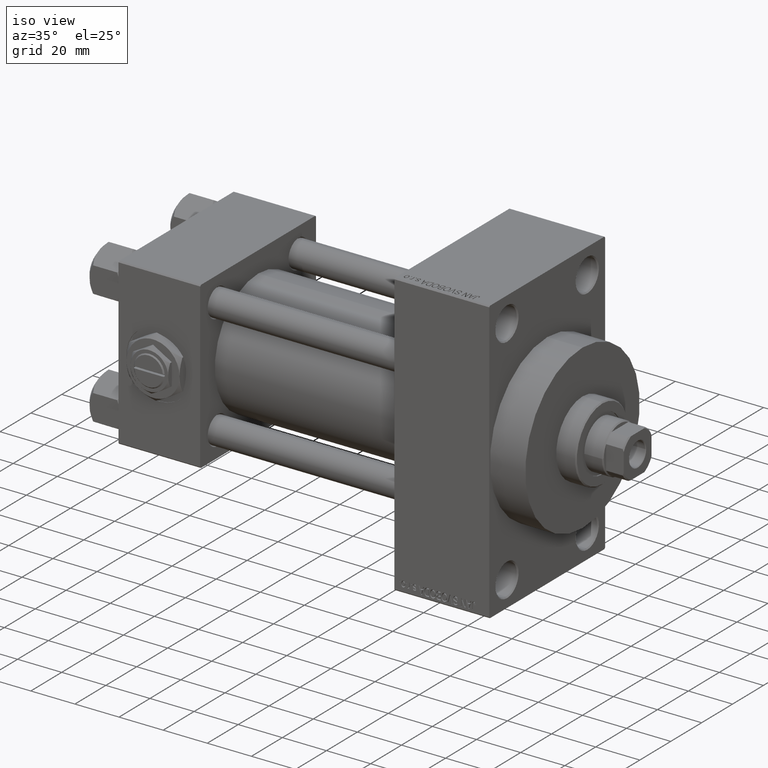
[diagram: clean part render]
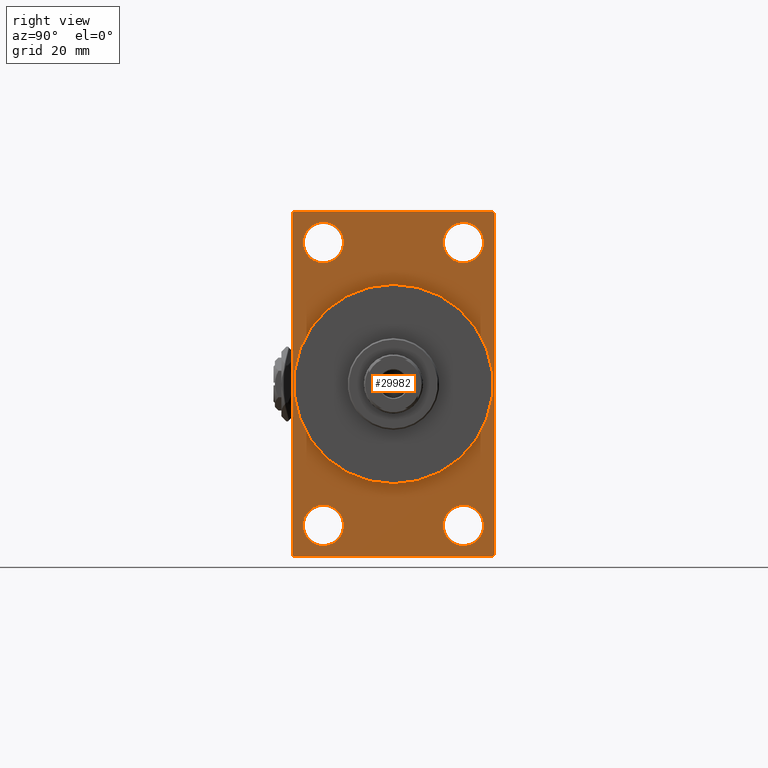
[diagram: tour spotlight — one face highlighted and labeled with its STEP entity id]
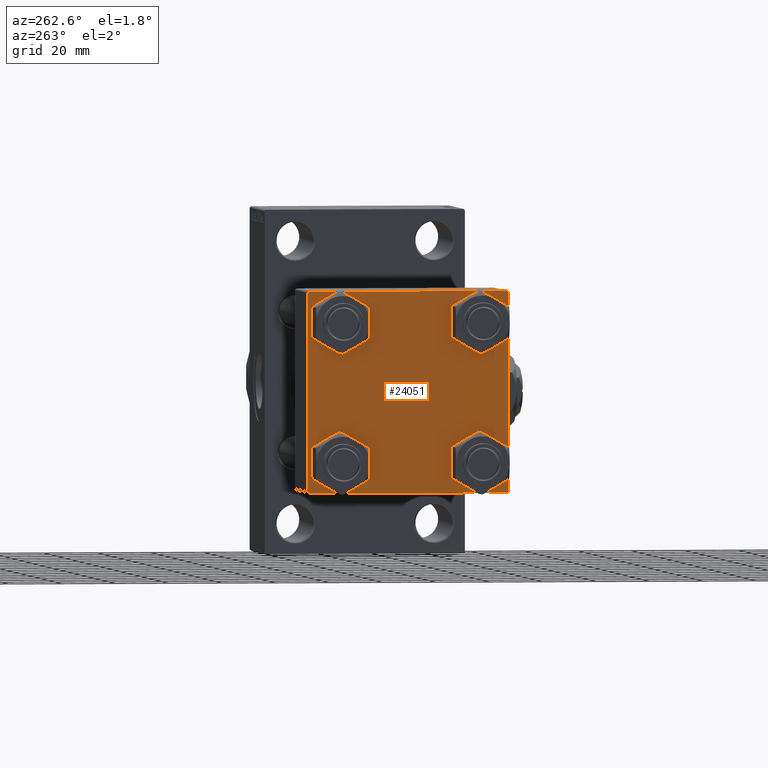
[diagram: tour spotlight — one face highlighted and labeled with its STEP entity id]
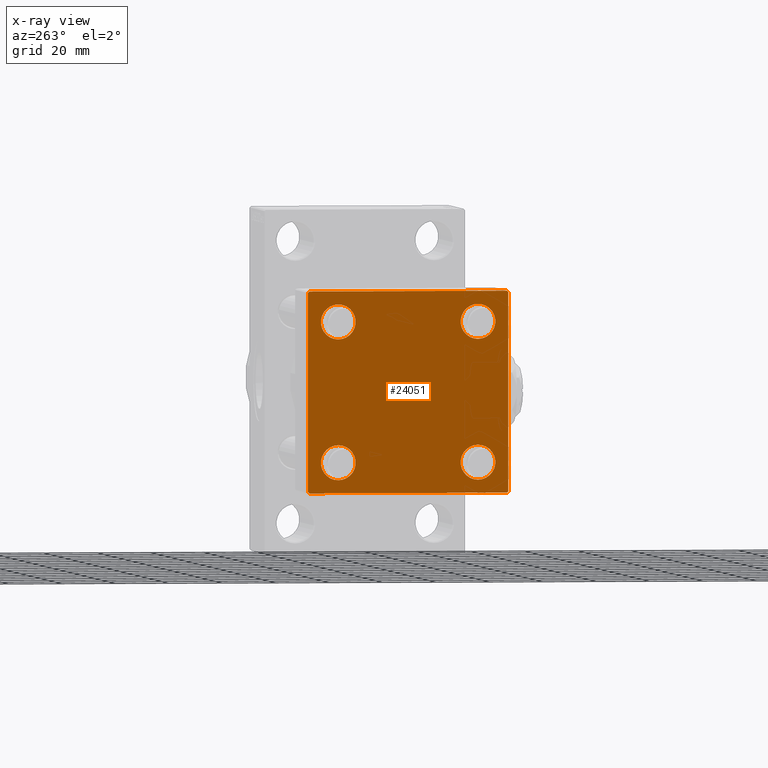
[diagram: x-ray of the same camera — body ghosted, this tour face saturated]
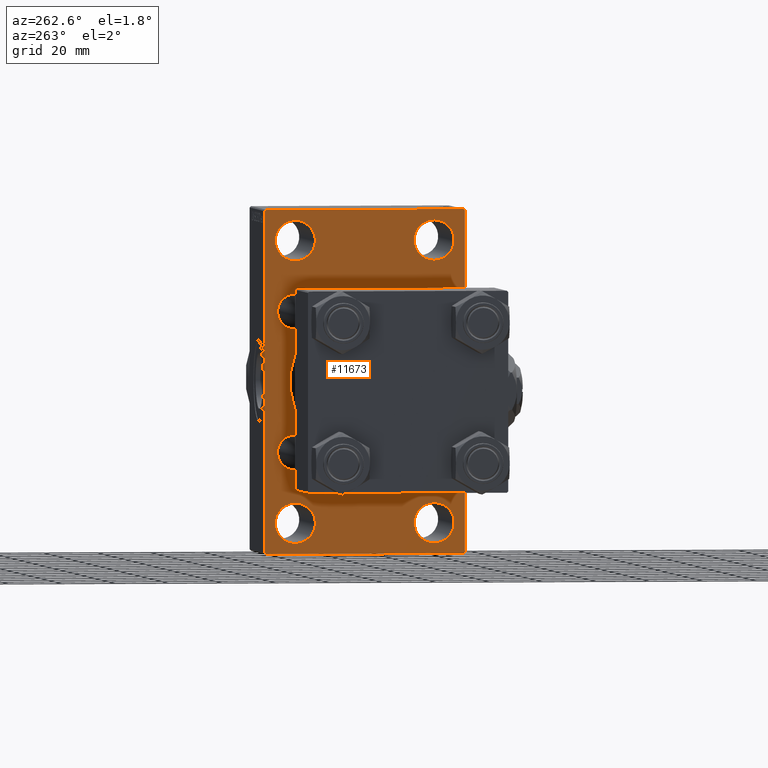
[diagram: tour spotlight — one face highlighted and labeled with its STEP entity id]
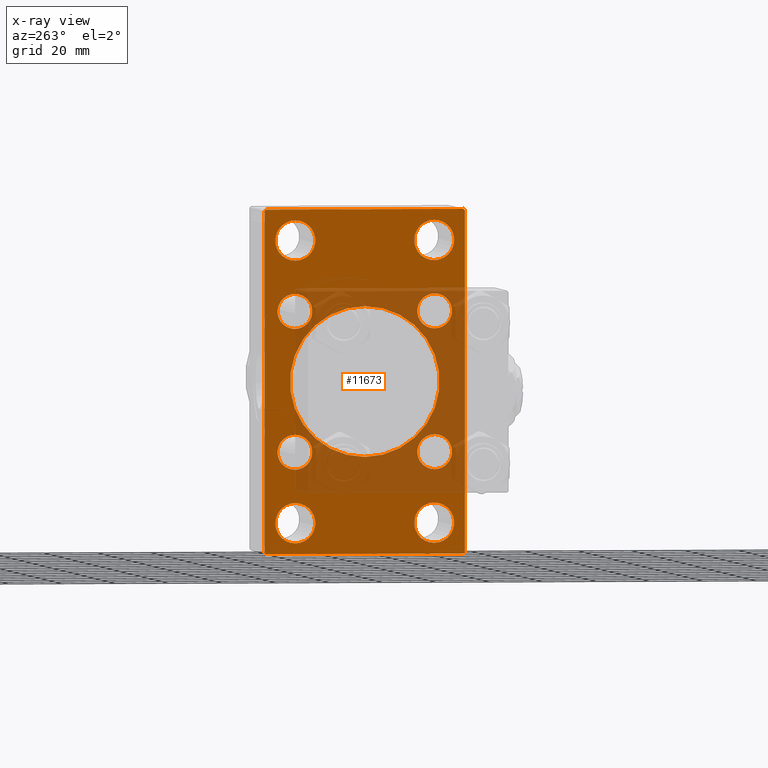
[diagram: x-ray of the same camera — body ghosted, this tour face saturated]
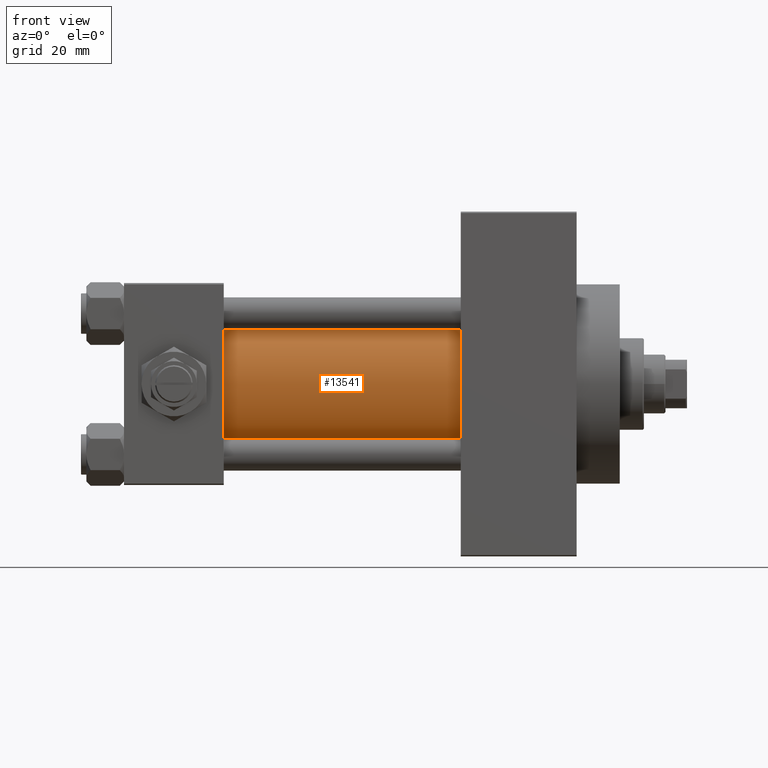
[diagram: tour spotlight — one face highlighted and labeled with its STEP entity id]
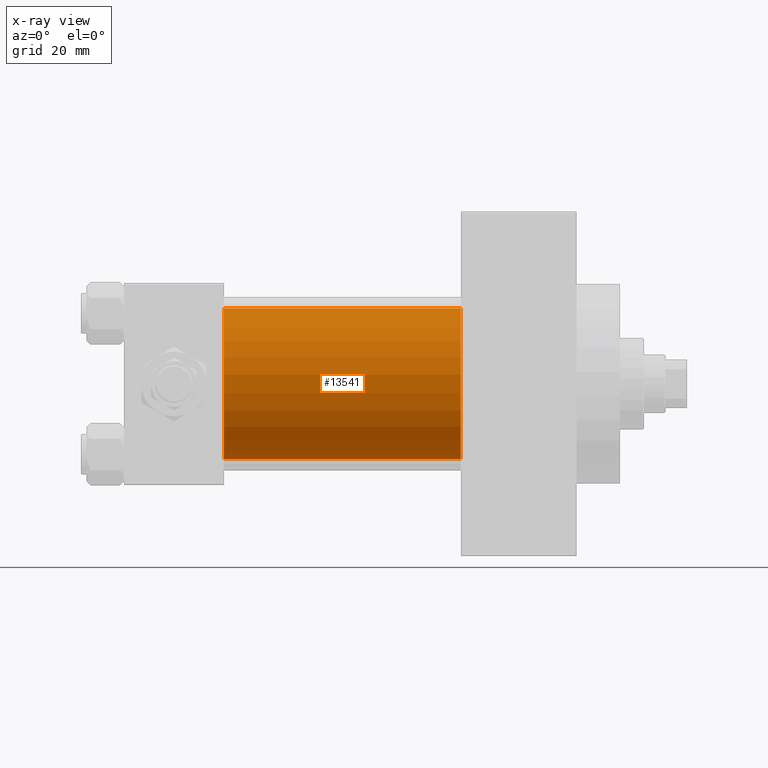
[diagram: x-ray of the same camera — body ghosted, this tour face saturated]
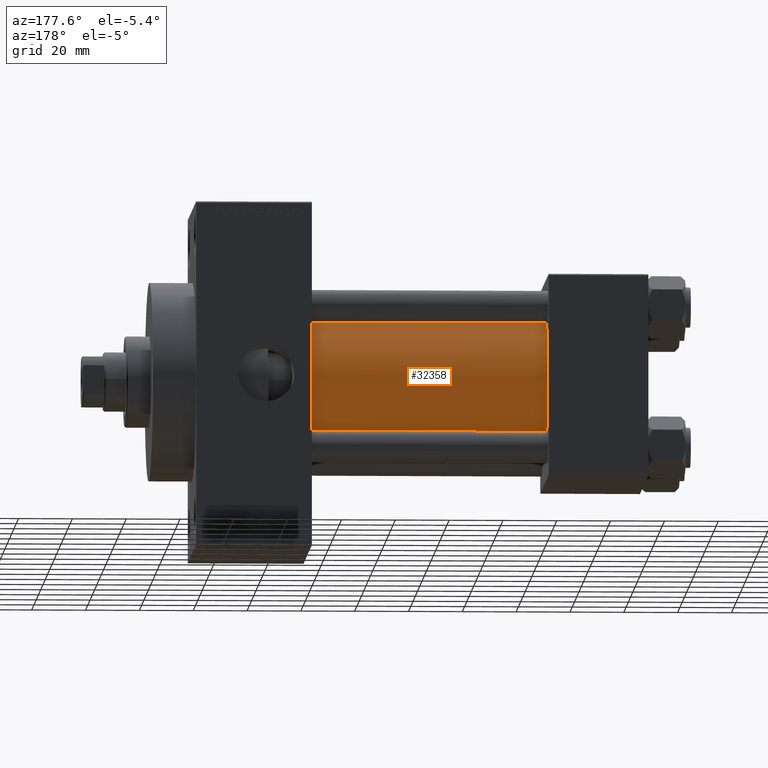
[diagram: tour spotlight — one face highlighted and labeled with its STEP entity id]
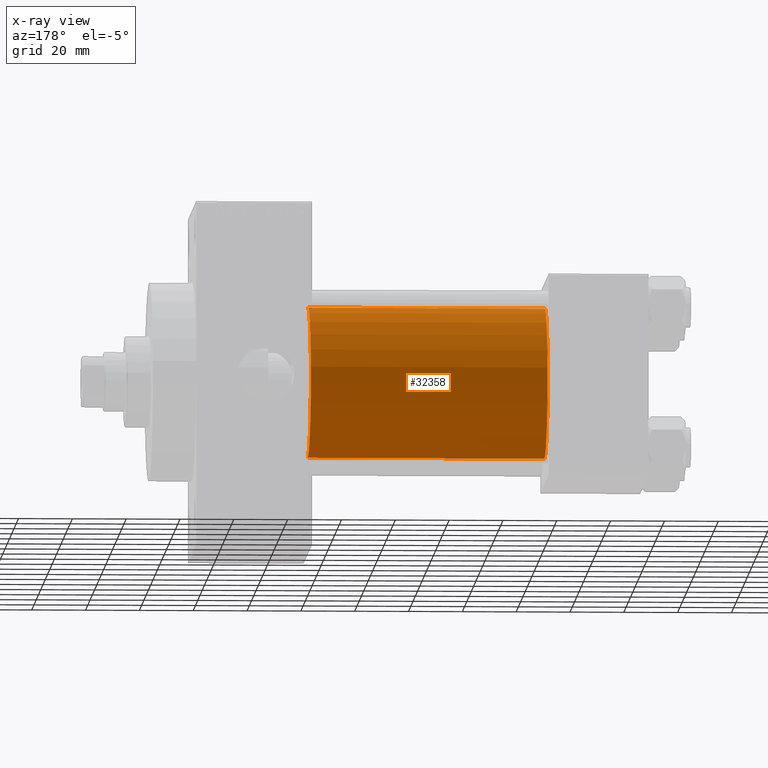
[diagram: x-ray of the same camera — body ghosted, this tour face saturated]
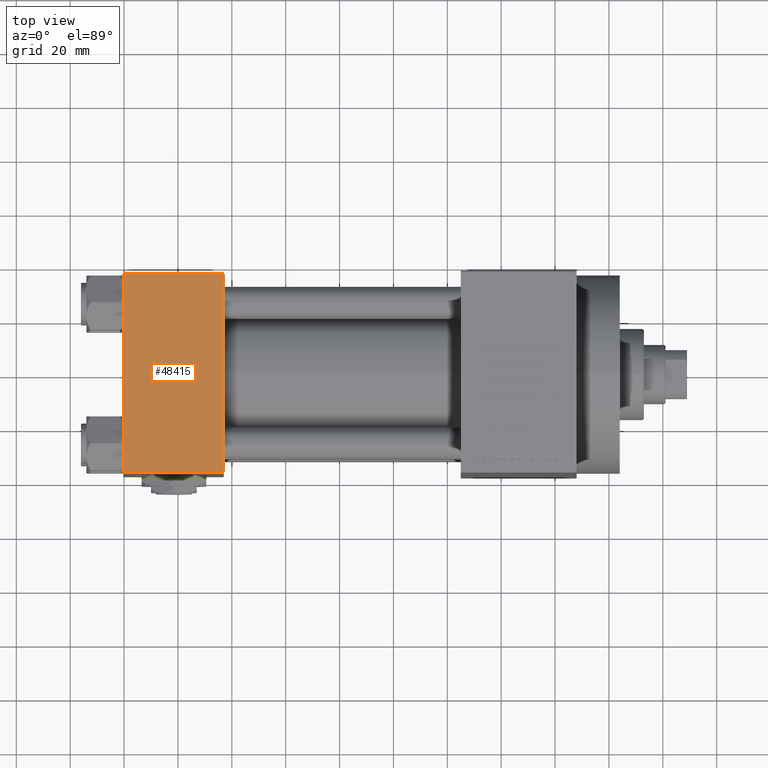
[diagram: tour spotlight — one face highlighted and labeled with its STEP entity id]
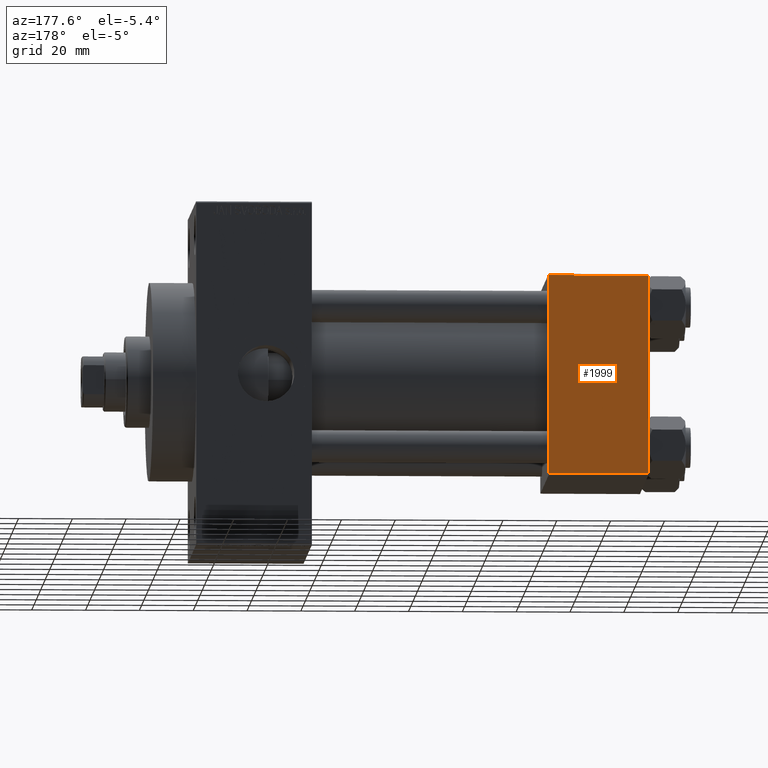
[diagram: tour spotlight — one face highlighted and labeled with its STEP entity id]
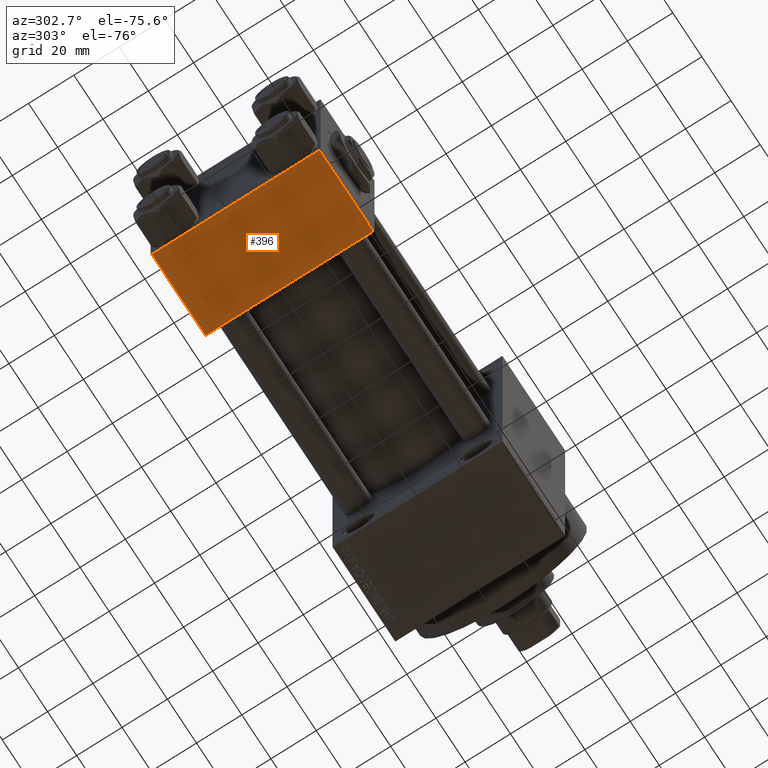
[diagram: tour spotlight — one face highlighted and labeled with its STEP entity id]
A machine part: a face-by-face anatomy tour. The part has 1146 B-rep faces; the first image is the clean iso view, then the 8 largest visible faces are spotlighted one at a time (largest first), each with its STEP entity span.

Face 1 — right view, entity #29982. In plain terms, the highlighted planar face has unit normal (-1, 0, 0).
Definition (entity closure, byte-faithful):
#220 = CARTESIAN_POINT ( 'NONE',  ( 167.9999999999999716, 0.000000000000000000, 0.000000000000000000 ) ) ;
#431 = ORIENTED_EDGE ( 'NONE', *, *, #31808, .T. ) ;
#783 = DIRECTION ( 'NONE',  ( -1.000000000000000000, 0.000000000000000000, -0.000000000000000000 ) ) ;
#1025 = LINE ( 'NONE', #41405, #9571 ) ;
#1063 = CARTESIAN_POINT ( 'NONE',  ( 167.9999999999999716, -25.99999999999999645, -44.99999999999998579 ) ) ;
#1321 = EDGE_CURVE ( 'NONE', #20542, #20929, #12797, .T. ) ;
#1343 = VECTOR ( 'NONE', #5993, 1000.000000000000000 ) ;
#1568 = VECTOR ( 'NONE', #6462, 1000.000000000000000 ) ;
#1702 = VERTEX_POINT ( 'NONE', #12186 ) ;
#1855 = CARTESIAN_POINT ( 'NONE',  ( 167.9999999999999716, 37.49999999999999289, -63.50000000000001421 ) ) ;
#2175 = ORIENTED_EDGE ( 'NONE', *, *, #41721, .T. ) ;
#2349 = EDGE_LOOP ( 'NONE', ( #41329, #25051 ) ) ;
#2408 = CIRCLE ( 'NONE', #29924, 7.500000000000007105 ) ;
#2451 = FACE_BOUND ( 'NONE', #19606, .T. ) ;
#2512 = CARTESIAN_POINT ( 'NONE',  ( 167.9999999999999716, -37.00000000000001421, 63.99999999999997158 ) ) ;
#2533 = DIRECTION ( 'NONE',  ( -1.000000000000000000, 0.000000000000000000, -0.000000000000000000 ) ) ;
#2946 = DIRECTION ( 'NONE',  ( -0.000000000000000000, 0.000000000000000000, 1.000000000000000000 ) ) ;
#3062 = VERTEX_POINT ( 'NONE', #35506 ) ;
#3942 = AXIS2_PLACEMENT_3D ( 'NONE', #8544, #27481, #38081 ) ;
#5035 = ORIENTED_EDGE ( 'NONE', *, *, #17898, .T. ) ;
#5185 = CARTESIAN_POINT ( 'NONE',  ( 167.9999999999999716, 26.00000000000000000, -44.99999999999998579 ) ) ;
#5207 = CARTESIAN_POINT ( 'NONE',  ( 167.9999999999999716, 26.00000000000000000, -52.49999999999999289 ) ) ;
#5491 = VERTEX_POINT ( 'NONE', #42518 ) ;
#5993 = DIRECTION ( 'NONE',  ( 0.000000000000000000, 0.7071067811865573427, -0.7071067811865378028 ) ) ;
#6151 = FACE_OUTER_BOUND ( 'NONE', #31611, .T. ) ;
#6462 = DIRECTION ( 'NONE',  ( 0.000000000000000000, -1.000000000000000000, -1.850371707708594563E-16 ) ) ;
#7416 = EDGE_LOOP ( 'NONE', ( #48676, #45325 ) ) ;
#7845 = AXIS2_PLACEMENT_3D ( 'NONE', #26659, #24173, #12358 ) ;
#8331 = ORIENTED_EDGE ( 'NONE', *, *, #11078, .T. ) ;
#8544 = CARTESIAN_POINT ( 'NONE',  ( 167.9999999999999716, -25.99999999999999645, 52.50000000000000000 ) ) ;
#8913 = CARTESIAN_POINT ( 'NONE',  ( 167.9999999999999716, 37.49999999999999289, -63.50000000000001421 ) ) ;
#9459 = DIRECTION ( 'NONE',  ( -1.000000000000000000, 0.000000000000000000, -0.000000000000000000 ) ) ;
#9571 = VECTOR ( 'NONE', #11632, 1000.000000000000000 ) ;
#9765 = DIRECTION ( 'NONE',  ( 0.000000000000000000, -1.000000000000000000, -1.850371707708594563E-16 ) ) ;
#9881 = CIRCLE ( 'NONE', #40518, 7.500000000000007105 ) ;
#10399 = DIRECTION ( 'NONE',  ( -1.000000000000000000, 0.000000000000000000, -0.000000000000000000 ) ) ;
#10661 = CIRCLE ( 'NONE', #38160, 7.500000000000007105 ) ;
#11078 = EDGE_CURVE ( 'NONE', #31940, #27429, #9881, .T. ) ;
#11632 = DIRECTION ( 'NONE',  ( 0.000000000000000000, -5.421010862427522170E-17, -1.000000000000000000 ) ) ;
#11777 = CIRCLE ( 'NONE', #3942, 7.500000000000007105 ) ;
#12007 = DIRECTION ( 'NONE',  ( 0.000000000000000000, -0.7071067811865474617, 0.7071067811865474617 ) ) ;
#12186 = CARTESIAN_POINT ( 'NONE',  ( 167.9999999999999716, -25.99999999999999645, 60.00000000000000711 ) ) ;
#12358 = DIRECTION ( 'NONE',  ( 0.000000000000000000, 0.000000000000000000, -1.000000000000000000 ) ) ;
#12448 = CARTESIAN_POINT ( 'NONE',  ( 167.9999999999999716, -36.99999999999999289, -64.00000000000001421 ) ) ;
#12560 = VERTEX_POINT ( 'NONE', #2512 ) ;
#12797 = CIRCLE ( 'NONE', #40304, 7.500000000000007105 ) ;
#13322 = VERTEX_POINT ( 'NONE', #1063 ) ;
#13371 = DIRECTION ( 'NONE',  ( 0.000000000000000000, 0.000000000000000000, 1.000000000000000000 ) ) ;
#13457 = ORIENTED_EDGE ( 'NONE', *, *, #1321, .T. ) ;
#13526 = FACE_BOUND ( 'NONE', #7416, .T. ) ;
#13710 = LINE ( 'NONE', #23811, #14320 ) ;
#13742 = CARTESIAN_POINT ( 'NONE',  ( 167.9999999999999716, 0.000000000000000000, 37.00000000000000000 ) ) ;
#14193 = VERTEX_POINT ( 'NONE', #42115 ) ;
#14216 = EDGE_CURVE ( 'NONE', #27429, #31940, #41390, .T. ) ;
#14320 = VECTOR ( 'NONE', #9765, 1000.000000000000000 ) ;
#14498 = VECTOR ( 'NONE', #12007, 1000.000000000000114 ) ;
#15526 = CARTESIAN_POINT ( 'NONE',  ( 167.9999999999999716, 26.00000000000000000, 52.49999999999999289 ) ) ;
#15667 = CARTESIAN_POINT ( 'NONE',  ( 167.9999999999999716, 26.00000000000000000, 60.00000000000000000 ) ) ;
#15988 = EDGE_LOOP ( 'NONE', ( #8331, #27118 ) ) ;
#17133 = VERTEX_POINT ( 'NONE', #17661 ) ;
#17375 = ORIENTED_EDGE ( 'NONE', *, *, #47496, .T. ) ;
#17661 = CARTESIAN_POINT ( 'NONE',  ( 167.9999999999999716, 37.00000000000000000, 63.99999999999998579 ) ) ;
#17780 = CARTESIAN_POINT ( 'NONE',  ( 167.9999999999999716, 37.50000000000000000, 63.99999999999998579 ) ) ;
#17898 = EDGE_CURVE ( 'NONE', #12560, #14193, #48545, .T. ) ;
#18272 = CARTESIAN_POINT ( 'NONE',  ( 167.9999999999999716, -25.99999999999999645, 52.50000000000000000 ) ) ;
#18621 = DIRECTION ( 'NONE',  ( 0.000000000000000000, 0.000000000000000000, -1.000000000000000000 ) ) ;
#18681 = DIRECTION ( 'NONE',  ( 0.000000000000000000, 0.000000000000000000, -1.000000000000000000 ) ) ;
#18750 = EDGE_CURVE ( 'NONE', #38846, #39483, #32803, .T. ) ;
#19606 = EDGE_LOOP ( 'NONE', ( #13457, #17375 ) ) ;
#19690 = ORIENTED_EDGE ( 'NONE', *, *, #36213, .F. ) ;
#20356 = VERTEX_POINT ( 'NONE', #41679 ) ;
#20542 = VERTEX_POINT ( 'NONE', #41320 ) ;
#20836 = CARTESIAN_POINT ( 'NONE',  ( 167.9999999999999716, -25.99999999999999645, 44.99999999999999289 ) ) ;
#20929 = VERTEX_POINT ( 'NONE', #15667 ) ;
#21382 = FACE_BOUND ( 'NONE', #2349, .T. ) ;
#21636 = FACE_BOUND ( 'NONE', #40950, .T. ) ;
#22392 = VECTOR ( 'NONE', #47615, 1000.000000000000114 ) ;
#22829 = EDGE_CURVE ( 'NONE', #13322, #20356, #46292, .T. ) ;
#22899 = DIRECTION ( 'NONE',  ( -1.000000000000000000, 0.000000000000000000, -0.000000000000000000 ) ) ;
#23584 = VERTEX_POINT ( 'NONE', #13742 ) ;
#23811 = CARTESIAN_POINT ( 'NONE',  ( 167.9999999999999716, 37.49999999999999289, -64.00000000000000000 ) ) ;
#24062 = LINE ( 'NONE', #30704, #14498 ) ;
#24173 = DIRECTION ( 'NONE',  ( 1.000000000000000000, 0.000000000000000000, 0.000000000000000000 ) ) ;
#24208 = DIRECTION ( 'NONE',  ( -1.000000000000000000, 0.000000000000000000, -0.000000000000000000 ) ) ;
#24581 = DIRECTION ( 'NONE',  ( -1.000000000000000000, 0.000000000000000000, -0.000000000000000000 ) ) ;
#24702 = EDGE_CURVE ( 'NONE', #36210, #1702, #11777, .T. ) ;
#25051 = ORIENTED_EDGE ( 'NONE', *, *, #30055, .F. ) ;
#25276 = EDGE_CURVE ( 'NONE', #23584, #5491, #29047, .T. ) ;
#25903 = CARTESIAN_POINT ( 'NONE',  ( 167.9999999999999716, -37.49999999999999289, 63.50000000000000000 ) ) ;
#26659 = CARTESIAN_POINT ( 'NONE',  ( 167.9999999999999716, 0.000000000000000000, 0.000000000000000000 ) ) ;
#26933 = DIRECTION ( 'NONE',  ( 0.000000000000000000, 0.000000000000000000, 1.000000000000000000 ) ) ;
#27118 = ORIENTED_EDGE ( 'NONE', *, *, #14216, .T. ) ;
#27429 = VERTEX_POINT ( 'NONE', #5185 ) ;
#27481 = DIRECTION ( 'NONE',  ( -1.000000000000000000, 0.000000000000000000, -0.000000000000000000 ) ) ;
#28359 = LINE ( 'NONE', #17780, #1568 ) ;
#28367 = AXIS2_PLACEMENT_3D ( 'NONE', #220, #44757, #18681 ) ;
#29047 = CIRCLE ( 'NONE', #7845, 37.00000000000000000 ) ;
#29085 = CARTESIAN_POINT ( 'NONE',  ( 167.9999999999999716, -37.49999999999999289, -63.50000000000002842 ) ) ;
#29924 = AXIS2_PLACEMENT_3D ( 'NONE', #18272, #2533, #48056 ) ;
#29982 = ADVANCED_FACE ( 'NONE', ( #13526, #21636, #47229, #2451, #21382, #6151 ), #36397, .F. ) ;
#30055 = EDGE_CURVE ( 'NONE', #5491, #23584, #44887, .T. ) ;
#30228 = CIRCLE ( 'NONE', #47509, 7.500000000000007105 ) ;
#30699 = ORIENTED_EDGE ( 'NONE', *, *, #41869, .T. ) ;
#30704 = CARTESIAN_POINT ( 'NONE',  ( 167.9999999999999716, 37.00000000000000000, 63.99999999999998579 ) ) ;
#30796 = DIRECTION ( 'NONE',  ( 0.000000000000000000, 0.000000000000000000, 1.000000000000000000 ) ) ;
#31173 = ORIENTED_EDGE ( 'NONE', *, *, #34575, .F. ) ;
#31611 = EDGE_LOOP ( 'NONE', ( #30699, #45805, #19690, #43670, #31173, #2175, #431, #5035 ) ) ;
#31808 = EDGE_CURVE ( 'NONE', #17133, #12560, #28359, .T. ) ;
#31940 = VERTEX_POINT ( 'NONE', #48536 ) ;
#32803 = LINE ( 'NONE', #46839, #1343 ) ;
#33489 = DIRECTION ( 'NONE',  ( 0.000000000000000000, 0.000000000000000000, 1.000000000000000000 ) ) ;
#33650 = EDGE_CURVE ( 'NONE', #1702, #36210, #2408, .T. ) ;
#34575 = EDGE_CURVE ( 'NONE', #3062, #47833, #1025, .T. ) ;
#35506 = CARTESIAN_POINT ( 'NONE',  ( 167.9999999999999716, 37.50000000000000000, 63.49999999999998579 ) ) ;
#35554 = LINE ( 'NONE', #1855, #22392 ) ;
#35758 = CARTESIAN_POINT ( 'NONE',  ( 167.9999999999999716, -25.99999999999999645, -52.49999999999999289 ) ) ;
#35897 = VECTOR ( 'NONE', #40413, 1000.000000000000000 ) ;
#36210 = VERTEX_POINT ( 'NONE', #20836 ) ;
#36213 = EDGE_CURVE ( 'NONE', #47440, #39483, #13710, .T. ) ;
#36397 = PLANE ( 'NONE',  #39360 ) ;
#37066 = LINE ( 'NONE', #37308, #41986 ) ;
#37308 = CARTESIAN_POINT ( 'NONE',  ( 167.9999999999999716, -37.49999999999999289, 63.99999999999997158 ) ) ;
#37866 = ORIENTED_EDGE ( 'NONE', *, *, #22829, .T. ) ;
#38081 = DIRECTION ( 'NONE',  ( 0.000000000000000000, 0.000000000000000000, 1.000000000000000000 ) ) ;
#38160 = AXIS2_PLACEMENT_3D ( 'NONE', #46861, #9459, #43894 ) ;
#38846 = VERTEX_POINT ( 'NONE', #29085 ) ;
#39360 = AXIS2_PLACEMENT_3D ( 'NONE', #40578, #39848, #2946 ) ;
#39483 = VERTEX_POINT ( 'NONE', #12448 ) ;
#39841 = AXIS2_PLACEMENT_3D ( 'NONE', #5207, #783, #30796 ) ;
#39848 = DIRECTION ( 'NONE',  ( -1.000000000000000000, 0.000000000000000000, -0.000000000000000000 ) ) ;
#40304 = AXIS2_PLACEMENT_3D ( 'NONE', #15526, #22899, #33489 ) ;
#40413 = DIRECTION ( 'NONE',  ( -0.000000000000000000, -0.7071067811865524577, -0.7071067811865426878 ) ) ;
#40518 = AXIS2_PLACEMENT_3D ( 'NONE', #43272, #24581, #47957 ) ;
#40578 = CARTESIAN_POINT ( 'NONE',  ( 167.9999999999999716, 0.000000000000000000, 0.000000000000000000 ) ) ;
#40929 = EDGE_CURVE ( 'NONE', #20356, #13322, #30228, .T. ) ;
#40950 = EDGE_LOOP ( 'NONE', ( #44557, #37866 ) ) ;
#41320 = CARTESIAN_POINT ( 'NONE',  ( 167.9999999999999716, 26.00000000000000000, 44.99999999999998579 ) ) ;
#41329 = ORIENTED_EDGE ( 'NONE', *, *, #25276, .F. ) ;
#41390 = CIRCLE ( 'NONE', #39841, 7.500000000000007105 ) ;
#41405 = CARTESIAN_POINT ( 'NONE',  ( 167.9999999999999716, 37.50000000000000000, 63.99999999999998579 ) ) ;
#41679 = CARTESIAN_POINT ( 'NONE',  ( 167.9999999999999716, -25.99999999999999645, -60.00000000000000000 ) ) ;
#41721 = EDGE_CURVE ( 'NONE', #3062, #17133, #24062, .T. ) ;
#41869 = EDGE_CURVE ( 'NONE', #14193, #38846, #37066, .T. ) ;
#41986 = VECTOR ( 'NONE', #18621, 1000.000000000000000 ) ;
#42115 = CARTESIAN_POINT ( 'NONE',  ( 167.9999999999999716, -37.49999999999999289, 63.50000000000000000 ) ) ;
#42169 = CARTESIAN_POINT ( 'NONE',  ( 167.9999999999999716, -25.99999999999999645, -52.49999999999999289 ) ) ;
#42518 = CARTESIAN_POINT ( 'NONE',  ( 167.9999999999999716, 4.531193156845206793E-15, -37.00000000000000000 ) ) ;
#42812 = EDGE_CURVE ( 'NONE', #47440, #47833, #35554, .T. ) ;
#43272 = CARTESIAN_POINT ( 'NONE',  ( 167.9999999999999716, 26.00000000000000000, -52.49999999999999289 ) ) ;
#43670 = ORIENTED_EDGE ( 'NONE', *, *, #42812, .T. ) ;
#43894 = DIRECTION ( 'NONE',  ( 0.000000000000000000, 0.000000000000000000, 1.000000000000000000 ) ) ;
#44557 = ORIENTED_EDGE ( 'NONE', *, *, #40929, .T. ) ;
#44757 = DIRECTION ( 'NONE',  ( 1.000000000000000000, 0.000000000000000000, 0.000000000000000000 ) ) ;
#44887 = CIRCLE ( 'NONE', #28367, 37.00000000000000000 ) ;
#45325 = ORIENTED_EDGE ( 'NONE', *, *, #33650, .T. ) ;
#45493 = AXIS2_PLACEMENT_3D ( 'NONE', #42169, #24208, #26933 ) ;
#45805 = ORIENTED_EDGE ( 'NONE', *, *, #18750, .T. ) ;
#45885 = CARTESIAN_POINT ( 'NONE',  ( 167.9999999999999716, 37.00000000000002132, -64.00000000000000000 ) ) ;
#46292 = CIRCLE ( 'NONE', #45493, 7.500000000000007105 ) ;
#46839 = CARTESIAN_POINT ( 'NONE',  ( 167.9999999999999716, -36.99999999999999289, -64.00000000000001421 ) ) ;
#46861 = CARTESIAN_POINT ( 'NONE',  ( 167.9999999999999716, 26.00000000000000000, 52.49999999999999289 ) ) ;
#47229 = FACE_BOUND ( 'NONE', #15988, .T. ) ;
#47440 = VERTEX_POINT ( 'NONE', #45885 ) ;
#47496 = EDGE_CURVE ( 'NONE', #20929, #20542, #10661, .T. ) ;
#47509 = AXIS2_PLACEMENT_3D ( 'NONE', #35758, #10399, #13371 ) ;
#47615 = DIRECTION ( 'NONE',  ( -0.000000000000000000, 0.7071067811865376918, 0.7071067811865573427 ) ) ;
#47833 = VERTEX_POINT ( 'NONE', #8913 ) ;
#47957 = DIRECTION ( 'NONE',  ( 0.000000000000000000, 0.000000000000000000, 1.000000000000000000 ) ) ;
#48056 = DIRECTION ( 'NONE',  ( 0.000000000000000000, 0.000000000000000000, 1.000000000000000000 ) ) ;
#48536 = CARTESIAN_POINT ( 'NONE',  ( 167.9999999999999716, 26.00000000000000000, -60.00000000000000000 ) ) ;
#48545 = LINE ( 'NONE', #25903, #35897 ) ;
#48676 = ORIENTED_EDGE ( 'NONE', *, *, #24702, .T. ) ;

Face 2 — auxiliary view, entity #24051. An x-ray twin of the same camera follows (body ghosted, this face saturated) — the face is partly hidden behind the body. In plain terms, the highlighted planar face has unit normal (-1, 0, 0).
Definition (entity closure, byte-faithful):
#69 = VECTOR ( 'NONE', #43928, 1000.000000000000114 ) ;
#125 = CIRCLE ( 'NONE', #884, 6.500000000000015987 ) ;
#322 = VERTEX_POINT ( 'NONE', #37348 ) ;
#337 = LINE ( 'NONE', #27142, #22050 ) ;
#884 = AXIS2_PLACEMENT_3D ( 'NONE', #27431, #35781, #42427 ) ;
#1366 = EDGE_LOOP ( 'NONE', ( #46014, #26051 ) ) ;
#1642 = DIRECTION ( 'NONE',  ( 0.000000000000000000, 0.000000000000000000, -1.000000000000000000 ) ) ;
#1674 = AXIS2_PLACEMENT_3D ( 'NONE', #7070, #4346, #18631 ) ;
#1738 = ORIENTED_EDGE ( 'NONE', *, *, #4559, .T. ) ;
#1890 = VERTEX_POINT ( 'NONE', #6758 ) ;
#3706 = ORIENTED_EDGE ( 'NONE', *, *, #31294, .T. ) ;
#3835 = DIRECTION ( 'NONE',  ( -0.000000000000000000, 0.000000000000000000, 1.000000000000000000 ) ) ;
#4071 = DIRECTION ( 'NONE',  ( -1.000000000000000000, 0.000000000000000000, -0.000000000000000000 ) ) ;
#4072 = VECTOR ( 'NONE', #20640, 1000.000000000000000 ) ;
#4346 = DIRECTION ( 'NONE',  ( 1.000000000000000000, -0.000000000000000000, 0.000000000000000000 ) ) ;
#4559 = EDGE_CURVE ( 'NONE', #43957, #26632, #39574, .T. ) ;
#4996 = EDGE_CURVE ( 'NONE', #14298, #322, #25923, .T. ) ;
#5645 = CARTESIAN_POINT ( 'NONE',  ( 0.000000000000000000, 37.49999999999999289, 37.50000000000000000 ) ) ;
#5749 = DIRECTION ( 'NONE',  ( 0.000000000000000000, 9.251858538542971581E-17, -1.000000000000000000 ) ) ;
#6758 = CARTESIAN_POINT ( 'NONE',  ( 0.000000000000000000, 26.14999999999999858, 32.65000000000002700 ) ) ;
#7014 = DIRECTION ( 'NONE',  ( 1.000000000000000000, -0.000000000000000000, 0.000000000000000000 ) ) ;
#7070 = CARTESIAN_POINT ( 'NONE',  ( 0.000000000000000000, -26.14999999999999147, -26.15000000000000924 ) ) ;
#7301 = VECTOR ( 'NONE', #14230, 1000.000000000000000 ) ;
#8633 = DIRECTION ( 'NONE',  ( 1.000000000000000000, -0.000000000000000000, 0.000000000000000000 ) ) ;
#9146 = FACE_BOUND ( 'NONE', #35834, .T. ) ;
#9586 = DIRECTION ( 'NONE',  ( 0.000000000000000000, 0.000000000000000000, 1.000000000000000000 ) ) ;
#9619 = EDGE_LOOP ( 'NONE', ( #10090, #47280, #20517, #1738, #16101, #11154, #20635, #29364 ) ) ;
#10090 = ORIENTED_EDGE ( 'NONE', *, *, #4996, .T. ) ;
#10619 = ORIENTED_EDGE ( 'NONE', *, *, #32117, .T. ) ;
#10629 = VECTOR ( 'NONE', #37935, 1000.000000000000000 ) ;
#11020 = AXIS2_PLACEMENT_3D ( 'NONE', #15300, #8633, #41612 ) ;
#11154 = ORIENTED_EDGE ( 'NONE', *, *, #33353, .T. ) ;
#11863 = CARTESIAN_POINT ( 'NONE',  ( 0.000000000000000000, 37.49999999999999289, 37.00000000000000000 ) ) ;
#12153 = DIRECTION ( 'NONE',  ( 0.000000000000000000, 0.000000000000000000, 1.000000000000000000 ) ) ;
#12217 = CARTESIAN_POINT ( 'NONE',  ( 0.000000000000000000, -26.14999999999999147, 32.65000000000003411 ) ) ;
#12291 = VERTEX_POINT ( 'NONE', #29141 ) ;
#12828 = FACE_BOUND ( 'NONE', #22470, .T. ) ;
#12971 = VERTEX_POINT ( 'NONE', #20183 ) ;
#13023 = LINE ( 'NONE', #5645, #4072 ) ;
#13319 = CARTESIAN_POINT ( 'NONE',  ( 0.000000000000000000, -37.50000000000000711, 36.99999999999999289 ) ) ;
#13834 = EDGE_CURVE ( 'NONE', #1890, #28275, #38998, .T. ) ;
#14038 = EDGE_CURVE ( 'NONE', #28174, #26632, #43372, .T. ) ;
#14230 = DIRECTION ( 'NONE',  ( 0.000000000000000000, -0.7071067811865524577, 0.7071067811865426878 ) ) ;
#14298 = VERTEX_POINT ( 'NONE', #11863 ) ;
#14821 = CARTESIAN_POINT ( 'NONE',  ( 0.000000000000000000, 36.99999999999999289, 37.50000000000000000 ) ) ;
#14904 = CARTESIAN_POINT ( 'NONE',  ( 0.000000000000000000, 26.14999999999999858, 26.15000000000000213 ) ) ;
#15300 = CARTESIAN_POINT ( 'NONE',  ( 0.000000000000000000, -26.14999999999999147, 26.15000000000000924 ) ) ;
#16101 = ORIENTED_EDGE ( 'NONE', *, *, #14038, .F. ) ;
#16828 = CARTESIAN_POINT ( 'NONE',  ( 0.000000000000000000, -37.50000000000000711, 37.49999999999999289 ) ) ;
#16981 = CARTESIAN_POINT ( 'NONE',  ( 0.000000000000000000, 26.14999999999999858, -26.15000000000000213 ) ) ;
#17206 = VERTEX_POINT ( 'NONE', #32416 ) ;
#17790 = AXIS2_PLACEMENT_3D ( 'NONE', #14904, #44912, #29904 ) ;
#18631 = DIRECTION ( 'NONE',  ( 0.000000000000000000, 0.000000000000000000, 1.000000000000000000 ) ) ;
#18836 = CARTESIAN_POINT ( 'NONE',  ( 0.000000000000000000, 0.000000000000000000, 0.000000000000000000 ) ) ;
#19325 = CARTESIAN_POINT ( 'NONE',  ( 0.000000000000000000, -26.14999999999999147, -19.64999999999999503 ) ) ;
#19479 = LINE ( 'NONE', #22931, #10629 ) ;
#20183 = CARTESIAN_POINT ( 'NONE',  ( 0.000000000000000000, -26.14999999999999147, -32.65000000000002700 ) ) ;
#20517 = ORIENTED_EDGE ( 'NONE', *, *, #44018, .T. ) ;
#20635 = ORIENTED_EDGE ( 'NONE', *, *, #35623, .F. ) ;
#20640 = DIRECTION ( 'NONE',  ( 0.000000000000000000, -1.000000000000000000, -9.251858538542971581E-17 ) ) ;
#21270 = CIRCLE ( 'NONE', #46420, 6.500000000000015987 ) ;
#22040 = EDGE_CURVE ( 'NONE', #12971, #45708, #43873, .T. ) ;
#22050 = VECTOR ( 'NONE', #34278, 1000.000000000000114 ) ;
#22470 = EDGE_LOOP ( 'NONE', ( #10619, #40746 ) ) ;
#22931 = CARTESIAN_POINT ( 'NONE',  ( 0.000000000000000000, 37.49999999999999289, -37.50000000000000000 ) ) ;
#24051 = ADVANCED_FACE ( 'NONE', ( #12828, #9146, #24159, #28086, #37537 ), #33842, .T. ) ;
#24159 = FACE_BOUND ( 'NONE', #1366, .T. ) ;
#24919 = CARTESIAN_POINT ( 'NONE',  ( 0.000000000000000000, -37.00000000000002132, -37.50000000000000711 ) ) ;
#25194 = CIRCLE ( 'NONE', #30666, 6.500000000000023093 ) ;
#25252 = AXIS2_PLACEMENT_3D ( 'NONE', #40713, #7014, #37019 ) ;
#25318 = ORIENTED_EDGE ( 'NONE', *, *, #22040, .T. ) ;
#25482 = LINE ( 'NONE', #47629, #69 ) ;
#25706 = EDGE_CURVE ( 'NONE', #30113, #40536, #25194, .T. ) ;
#25923 = LINE ( 'NONE', #40921, #37167 ) ;
#26022 = CARTESIAN_POINT ( 'NONE',  ( 0.000000000000000000, 37.24999999999999289, 37.24999999999999289 ) ) ;
#26051 = ORIENTED_EDGE ( 'NONE', *, *, #28511, .T. ) ;
#26607 = AXIS2_PLACEMENT_3D ( 'NONE', #38242, #30611, #12153 ) ;
#26632 = VERTEX_POINT ( 'NONE', #42320 ) ;
#27000 = VECTOR ( 'NONE', #29948, 1000.000000000000114 ) ;
#27142 = CARTESIAN_POINT ( 'NONE',  ( 0.000000000000000000, 37.24999999999998579, -37.24999999999998579 ) ) ;
#27431 = CARTESIAN_POINT ( 'NONE',  ( 0.000000000000000000, 26.14999999999999858, -26.15000000000000213 ) ) ;
#27469 = AXIS2_PLACEMENT_3D ( 'NONE', #18836, #4071, #3835 ) ;
#27796 = CARTESIAN_POINT ( 'NONE',  ( 0.000000000000000000, -26.14999999999999147, 26.15000000000000924 ) ) ;
#27985 = ORIENTED_EDGE ( 'NONE', *, *, #13834, .T. ) ;
#28086 = FACE_BOUND ( 'NONE', #46676, .T. ) ;
#28174 = VERTEX_POINT ( 'NONE', #13319 ) ;
#28275 = VERTEX_POINT ( 'NONE', #46179 ) ;
#28511 = EDGE_CURVE ( 'NONE', #17206, #30517, #125, .T. ) ;
#29141 = CARTESIAN_POINT ( 'NONE',  ( 0.000000000000000000, 36.99999999999997868, -37.50000000000000000 ) ) ;
#29364 = ORIENTED_EDGE ( 'NONE', *, *, #39399, .T. ) ;
#29452 = EDGE_CURVE ( 'NONE', #322, #12291, #337, .T. ) ;
#29904 = DIRECTION ( 'NONE',  ( 0.000000000000000000, 0.000000000000000000, 1.000000000000000000 ) ) ;
#29936 = CARTESIAN_POINT ( 'NONE',  ( 0.000000000000000000, 26.14999999999999858, -19.64999999999998792 ) ) ;
#29948 = DIRECTION ( 'NONE',  ( 0.000000000000000000, 0.7071067811865474617, -0.7071067811865474617 ) ) ;
#30017 = EDGE_CURVE ( 'NONE', #30517, #17206, #21270, .T. ) ;
#30113 = VERTEX_POINT ( 'NONE', #33439 ) ;
#30517 = VERTEX_POINT ( 'NONE', #29936 ) ;
#30611 = DIRECTION ( 'NONE',  ( 1.000000000000000000, -0.000000000000000000, 0.000000000000000000 ) ) ;
#30666 = AXIS2_PLACEMENT_3D ( 'NONE', #27796, #35410, #46009 ) ;
#31294 = EDGE_CURVE ( 'NONE', #45708, #12971, #46454, .T. ) ;
#31630 = EDGE_CURVE ( 'NONE', #28275, #1890, #43992, .T. ) ;
#32117 = EDGE_CURVE ( 'NONE', #40536, #30113, #34590, .T. ) ;
#32416 = CARTESIAN_POINT ( 'NONE',  ( 0.000000000000000000, 26.14999999999999858, -32.65000000000001990 ) ) ;
#33353 = EDGE_CURVE ( 'NONE', #28174, #39670, #25482, .T. ) ;
#33439 = CARTESIAN_POINT ( 'NONE',  ( 0.000000000000000000, -26.14999999999999147, 19.64999999999999147 ) ) ;
#33842 = PLANE ( 'NONE',  #27469 ) ;
#34278 = DIRECTION ( 'NONE',  ( -0.000000000000000000, -0.7071067811865474617, -0.7071067811865474617 ) ) ;
#34590 = CIRCLE ( 'NONE', #11020, 6.500000000000023093 ) ;
#35098 = VECTOR ( 'NONE', #5749, 1000.000000000000000 ) ;
#35410 = DIRECTION ( 'NONE',  ( 1.000000000000000000, -0.000000000000000000, 0.000000000000000000 ) ) ;
#35623 = EDGE_CURVE ( 'NONE', #37727, #39670, #13023, .T. ) ;
#35781 = DIRECTION ( 'NONE',  ( 1.000000000000000000, -0.000000000000000000, 0.000000000000000000 ) ) ;
#35834 = EDGE_LOOP ( 'NONE', ( #3706, #25318 ) ) ;
#36126 = CARTESIAN_POINT ( 'NONE',  ( 0.000000000000000000, -37.24999999999975842, -37.25000000000027001 ) ) ;
#37019 = DIRECTION ( 'NONE',  ( 0.000000000000000000, 0.000000000000000000, 1.000000000000000000 ) ) ;
#37167 = VECTOR ( 'NONE', #1642, 1000.000000000000000 ) ;
#37325 = LINE ( 'NONE', #26022, #27000 ) ;
#37348 = CARTESIAN_POINT ( 'NONE',  ( 0.000000000000000000, 37.49999999999999289, -36.99999999999998579 ) ) ;
#37537 = FACE_OUTER_BOUND ( 'NONE', #9619, .T. ) ;
#37727 = VERTEX_POINT ( 'NONE', #14821 ) ;
#37935 = DIRECTION ( 'NONE',  ( 0.000000000000000000, -1.000000000000000000, -9.251858538542972814E-17 ) ) ;
#37947 = ORIENTED_EDGE ( 'NONE', *, *, #31630, .T. ) ;
#38242 = CARTESIAN_POINT ( 'NONE',  ( 0.000000000000000000, -26.14999999999999147, -26.15000000000000924 ) ) ;
#38998 = CIRCLE ( 'NONE', #17790, 6.500000000000023093 ) ;
#39399 = EDGE_CURVE ( 'NONE', #37727, #14298, #37325, .T. ) ;
#39574 = LINE ( 'NONE', #36126, #7301 ) ;
#39670 = VERTEX_POINT ( 'NONE', #46274 ) ;
#40334 = DIRECTION ( 'NONE',  ( 1.000000000000000000, -0.000000000000000000, 0.000000000000000000 ) ) ;
#40536 = VERTEX_POINT ( 'NONE', #12217 ) ;
#40713 = CARTESIAN_POINT ( 'NONE',  ( 0.000000000000000000, 26.14999999999999858, 26.15000000000000213 ) ) ;
#40746 = ORIENTED_EDGE ( 'NONE', *, *, #25706, .T. ) ;
#40921 = CARTESIAN_POINT ( 'NONE',  ( 0.000000000000000000, 37.49999999999999289, 37.50000000000000000 ) ) ;
#41612 = DIRECTION ( 'NONE',  ( 0.000000000000000000, 0.000000000000000000, 1.000000000000000000 ) ) ;
#42320 = CARTESIAN_POINT ( 'NONE',  ( 0.000000000000000000, -37.50000000000000000, -37.00000000000003553 ) ) ;
#42427 = DIRECTION ( 'NONE',  ( 0.000000000000000000, 0.000000000000000000, 1.000000000000000000 ) ) ;
#43372 = LINE ( 'NONE', #16828, #35098 ) ;
#43873 = CIRCLE ( 'NONE', #26607, 6.500000000000015987 ) ;
#43928 = DIRECTION ( 'NONE',  ( -0.000000000000000000, 0.7071067811865474617, 0.7071067811865474617 ) ) ;
#43957 = VERTEX_POINT ( 'NONE', #24919 ) ;
#43992 = CIRCLE ( 'NONE', #25252, 6.500000000000023093 ) ;
#44018 = EDGE_CURVE ( 'NONE', #12291, #43957, #19479, .T. ) ;
#44912 = DIRECTION ( 'NONE',  ( 1.000000000000000000, -0.000000000000000000, 0.000000000000000000 ) ) ;
#45708 = VERTEX_POINT ( 'NONE', #19325 ) ;
#46009 = DIRECTION ( 'NONE',  ( 0.000000000000000000, 0.000000000000000000, 1.000000000000000000 ) ) ;
#46014 = ORIENTED_EDGE ( 'NONE', *, *, #30017, .T. ) ;
#46179 = CARTESIAN_POINT ( 'NONE',  ( 0.000000000000000000, 26.14999999999999858, 19.64999999999998437 ) ) ;
#46274 = CARTESIAN_POINT ( 'NONE',  ( 0.000000000000000000, -37.00000000000000711, 37.49999999999999289 ) ) ;
#46420 = AXIS2_PLACEMENT_3D ( 'NONE', #16981, #40334, #9586 ) ;
#46454 = CIRCLE ( 'NONE', #1674, 6.500000000000015987 ) ;
#46676 = EDGE_LOOP ( 'NONE', ( #27985, #37947 ) ) ;
#47280 = ORIENTED_EDGE ( 'NONE', *, *, #29452, .T. ) ;
#47629 = CARTESIAN_POINT ( 'NONE',  ( -0.000000000000000000, -37.25000000000000000, 37.25000000000000000 ) ) ;

Face 3 — auxiliary view, entity #11673. An x-ray twin of the same camera follows (body ghosted, this face saturated) — the face is partly hidden behind the body. In plain terms, the highlighted planar face has unit normal (-1, 0, 0).
Definition (entity closure, byte-faithful):
#70 = CARTESIAN_POINT ( 'NONE',  ( 125.0000000000000000, 26.00000000000000000, -52.49999999999999289 ) ) ;
#161 = EDGE_CURVE ( 'NONE', #24292, #46225, #30744, .T. ) ;
#479 = AXIS2_PLACEMENT_3D ( 'NONE', #9460, #47341, #31610 ) ;
#746 = DIRECTION ( 'NONE',  ( 0.000000000000000000, -1.000000000000000000, -1.850371707708594563E-16 ) ) ;
#970 = CARTESIAN_POINT ( 'NONE',  ( 125.0000000000000000, -37.49999999999999289, 63.99999999999997158 ) ) ;
#1177 = CIRCLE ( 'NONE', #28679, 6.500000000000008882 ) ;
#1455 = DIRECTION ( 'NONE',  ( 1.000000000000000000, 0.000000000000000000, 0.000000000000000000 ) ) ;
#1985 = CIRCLE ( 'NONE', #31056, 7.500000000000034639 ) ;
#2288 = DIRECTION ( 'NONE',  ( 0.000000000000000000, 0.000000000000000000, 1.000000000000000000 ) ) ;
#2524 = CARTESIAN_POINT ( 'NONE',  ( 125.0000000000000000, 26.00000000000000000, 60.00000000000002842 ) ) ;
#2693 = EDGE_CURVE ( 'NONE', #44822, #10166, #12832, .T. ) ;
#2900 = DIRECTION ( 'NONE',  ( 1.000000000000000000, -0.000000000000000000, 0.000000000000000000 ) ) ;
#3079 = DIRECTION ( 'NONE',  ( 1.000000000000000000, -0.000000000000000000, 0.000000000000000000 ) ) ;
#3321 = DIRECTION ( 'NONE',  ( 0.000000000000000000, 0.000000000000000000, 1.000000000000000000 ) ) ;
#3417 = ORIENTED_EDGE ( 'NONE', *, *, #26925, .T. ) ;
#3562 = CARTESIAN_POINT ( 'NONE',  ( 125.0000000000000000, 26.14999999999999858, -26.15000000000000213 ) ) ;
#3746 = AXIS2_PLACEMENT_3D ( 'NONE', #25924, #22215, #37473 ) ;
#3761 = DIRECTION ( 'NONE',  ( 0.000000000000000000, 0.000000000000000000, 1.000000000000000000 ) ) ;
#3838 = VERTEX_POINT ( 'NONE', #28930 ) ;
#4101 = CARTESIAN_POINT ( 'NONE',  ( 125.0000000000000000, -2.602085213965210642E-15, 0.000000000000000000 ) ) ;
#4665 = EDGE_CURVE ( 'NONE', #43920, #14223, #43415, .T. ) ;
#4733 = EDGE_LOOP ( 'NONE', ( #7662, #13772 ) ) ;
#4787 = VERTEX_POINT ( 'NONE', #45461 ) ;
#4802 = EDGE_CURVE ( 'NONE', #5241, #38497, #10448, .T. ) ;
#4847 = DIRECTION ( 'NONE',  ( 0.000000000000000000, 0.000000000000000000, 1.000000000000000000 ) ) ;
#4859 = ORIENTED_EDGE ( 'NONE', *, *, #46373, .T. ) ;
#5032 = ORIENTED_EDGE ( 'NONE', *, *, #9802, .F. ) ;
#5241 = VERTEX_POINT ( 'NONE', #40375 ) ;
#5538 = CARTESIAN_POINT ( 'NONE',  ( 125.0000000000000000, -26.14999999999999147, 32.65000000000001990 ) ) ;
#5577 = VECTOR ( 'NONE', #11125, 1000.000000000000000 ) ;
#6018 = FACE_OUTER_BOUND ( 'NONE', #40144, .T. ) ;
#6362 = AXIS2_PLACEMENT_3D ( 'NONE', #4101, #44212, #15182 ) ;
#6593 = CARTESIAN_POINT ( 'NONE',  ( 125.0000000000000000, -25.99999999999999645, -52.49999999999999289 ) ) ;
#7257 = EDGE_CURVE ( 'NONE', #17648, #30697, #7401, .T. ) ;
#7401 = CIRCLE ( 'NONE', #16846, 6.500000000000008882 ) ;
#7435 = VECTOR ( 'NONE', #27182, 1000.000000000000114 ) ;
#7510 = CIRCLE ( 'NONE', #9847, 6.500000000000008882 ) ;
#7662 = ORIENTED_EDGE ( 'NONE', *, *, #45394, .T. ) ;
#7874 = VECTOR ( 'NONE', #746, 1000.000000000000000 ) ;
#8051 = EDGE_LOOP ( 'NONE', ( #10540, #31670 ) ) ;
#8574 = ORIENTED_EDGE ( 'NONE', *, *, #47173, .T. ) ;
#8892 = CARTESIAN_POINT ( 'NONE',  ( 125.0000000000000000, 26.00000000000000000, 44.99999999999995737 ) ) ;
#9286 = CIRCLE ( 'NONE', #24111, 7.500000000000034639 ) ;
#9298 = LINE ( 'NONE', #30714, #27334 ) ;
#9359 = CARTESIAN_POINT ( 'NONE',  ( 125.0000000000000000, 50.50000000000053291, -50.49999999999912603 ) ) ;
#9447 = DIRECTION ( 'NONE',  ( 0.000000000000000000, -0.7071067811865573427, 0.7071067811865378028 ) ) ;
#9460 = CARTESIAN_POINT ( 'NONE',  ( 125.0000000000000000, 0.000000000000000000, 0.000000000000000000 ) ) ;
#9802 = EDGE_CURVE ( 'NONE', #24970, #42160, #11780, .T. ) ;
#9847 = AXIS2_PLACEMENT_3D ( 'NONE', #14588, #25414, #2288 ) ;
#9989 = EDGE_CURVE ( 'NONE', #14223, #43920, #1985, .T. ) ;
#10166 = VERTEX_POINT ( 'NONE', #14697 ) ;
#10343 = AXIS2_PLACEMENT_3D ( 'NONE', #41419, #33550, #30342 ) ;
#10448 = CIRCLE ( 'NONE', #14391, 6.500000000000008882 ) ;
#10515 = DIRECTION ( 'NONE',  ( 0.000000000000000000, 0.000000000000000000, 1.000000000000000000 ) ) ;
#10540 = ORIENTED_EDGE ( 'NONE', *, *, #4665, .T. ) ;
#10610 = EDGE_LOOP ( 'NONE', ( #28978, #3417 ) ) ;
#11125 = DIRECTION ( 'NONE',  ( 0.000000000000000000, -5.421010862427522170E-17, -1.000000000000000000 ) ) ;
#11232 = AXIS2_PLACEMENT_3D ( 'NONE', #18407, #25796, #18656 ) ;
#11475 = ORIENTED_EDGE ( 'NONE', *, *, #35727, .T. ) ;
#11517 = VERTEX_POINT ( 'NONE', #27201 ) ;
#11673 = ADVANCED_FACE ( 'NONE', ( #17092, #43395, #20530, #21256, #16608, #16853, #32092, #13642, #47098, #6018 ), #21015, .T. ) ;
#11762 = VERTEX_POINT ( 'NONE', #16058 ) ;
#11780 = LINE ( 'NONE', #22853, #23195 ) ;
#11937 = EDGE_LOOP ( 'NONE', ( #41969, #36628 ) ) ;
#12043 = DIRECTION ( 'NONE',  ( 0.000000000000000000, 0.000000000000000000, 1.000000000000000000 ) ) ;
#12523 = CARTESIAN_POINT ( 'NONE',  ( 125.0000000000000000, 26.14999999999999858, -32.65000000000001279 ) ) ;
#12832 = CIRCLE ( 'NONE', #27767, 6.500000000000008882 ) ;
#12881 = CARTESIAN_POINT ( 'NONE',  ( 125.0000000000000000, 37.00000000000002132, -64.00000000000000000 ) ) ;
#13642 = FACE_BOUND ( 'NONE', #20880, .T. ) ;
#13772 = ORIENTED_EDGE ( 'NONE', *, *, #41170, .T. ) ;
#13968 = CARTESIAN_POINT ( 'NONE',  ( 125.0000000000000000, -25.99999999999999645, 44.99999999999996447 ) ) ;
#14223 = VERTEX_POINT ( 'NONE', #8892 ) ;
#14346 = CARTESIAN_POINT ( 'NONE',  ( 125.0000000000000000, -26.14999999999999147, 26.15000000000000924 ) ) ;
#14391 = AXIS2_PLACEMENT_3D ( 'NONE', #27244, #20334, #4847 ) ;
#14436 = VERTEX_POINT ( 'NONE', #26345 ) ;
#14588 = CARTESIAN_POINT ( 'NONE',  ( 125.0000000000000000, -26.14999999999999147, -26.15000000000000924 ) ) ;
#14697 = CARTESIAN_POINT ( 'NONE',  ( 125.0000000000000000, -26.14999999999999147, -32.65000000000001990 ) ) ;
#15035 = CARTESIAN_POINT ( 'NONE',  ( 125.0000000000000000, -25.99999999999999645, -52.49999999999999289 ) ) ;
#15053 = EDGE_CURVE ( 'NONE', #36823, #46225, #43633, .T. ) ;
#15149 = EDGE_CURVE ( 'NONE', #38497, #5241, #25744, .T. ) ;
#15153 = ORIENTED_EDGE ( 'NONE', *, *, #38322, .T. ) ;
#15182 = DIRECTION ( 'NONE',  ( 0.000000000000000000, 0.000000000000000000, -1.000000000000000000 ) ) ;
#15680 = VERTEX_POINT ( 'NONE', #23320 ) ;
#16058 = CARTESIAN_POINT ( 'NONE',  ( 125.0000000000000000, -25.99999999999999645, -44.99999999999995737 ) ) ;
#16608 = FACE_BOUND ( 'NONE', #26941, .T. ) ;
#16631 = VECTOR ( 'NONE', #23375, 1000.000000000000000 ) ;
#16680 = DIRECTION ( 'NONE',  ( 1.000000000000000000, -0.000000000000000000, 0.000000000000000000 ) ) ;
#16846 = AXIS2_PLACEMENT_3D ( 'NONE', #14346, #44850, #44361 ) ;
#16853 = FACE_BOUND ( 'NONE', #11937, .T. ) ;
#17092 = FACE_BOUND ( 'NONE', #20642, .T. ) ;
#17114 = EDGE_CURVE ( 'NONE', #14436, #11762, #9286, .T. ) ;
#17416 = DIRECTION ( 'NONE',  ( 1.000000000000000000, -0.000000000000000000, 0.000000000000000000 ) ) ;
#17648 = VERTEX_POINT ( 'NONE', #25479 ) ;
#17654 = AXIS2_PLACEMENT_3D ( 'NONE', #35162, #1455, #35642 ) ;
#18328 = AXIS2_PLACEMENT_3D ( 'NONE', #22811, #29950, #18638 ) ;
#18407 = CARTESIAN_POINT ( 'NONE',  ( 125.0000000000000000, 26.00000000000000000, 52.49999999999999289 ) ) ;
#18638 = DIRECTION ( 'NONE',  ( 0.000000000000000000, 0.000000000000000000, 1.000000000000000000 ) ) ;
#18656 = DIRECTION ( 'NONE',  ( 0.000000000000000000, 0.000000000000000000, 1.000000000000000000 ) ) ;
#18666 = ORIENTED_EDGE ( 'NONE', *, *, #25672, .T. ) ;
#18940 = CIRCLE ( 'NONE', #6362, 28.00000000000000000 ) ;
#18992 = CIRCLE ( 'NONE', #10343, 7.500000000000034639 ) ;
#19435 = VECTOR ( 'NONE', #9447, 1000.000000000000000 ) ;
#19496 = VERTEX_POINT ( 'NONE', #34619 ) ;
#19689 = EDGE_CURVE ( 'NONE', #24292, #42160, #9298, .T. ) ;
#19877 = DIRECTION ( 'NONE',  ( 0.000000000000000000, -1.000000000000000000, -1.850371707708594563E-16 ) ) ;
#19997 = AXIS2_PLACEMENT_3D ( 'NONE', #41580, #30265, #12043 ) ;
#20334 = DIRECTION ( 'NONE',  ( 1.000000000000000000, -0.000000000000000000, 0.000000000000000000 ) ) ;
#20372 = ORIENTED_EDGE ( 'NONE', *, *, #44739, .T. ) ;
#20530 = FACE_BOUND ( 'NONE', #4733, .T. ) ;
#20642 = EDGE_LOOP ( 'NONE', ( #11475, #15153 ) ) ;
#20880 = EDGE_LOOP ( 'NONE', ( #46174, #8574 ) ) ;
#21015 = PLANE ( 'NONE',  #479 ) ;
#21256 = FACE_BOUND ( 'NONE', #8051, .T. ) ;
#21470 = VECTOR ( 'NONE', #28060, 1000.000000000000114 ) ;
#21612 = CIRCLE ( 'NONE', #34189, 7.500000000000034639 ) ;
#21732 = CARTESIAN_POINT ( 'NONE',  ( 125.0000000000000000, -50.49999999999949551, -50.50000000000089528 ) ) ;
#22215 = DIRECTION ( 'NONE',  ( 1.000000000000000000, -0.000000000000000000, 0.000000000000000000 ) ) ;
#22333 = VERTEX_POINT ( 'NONE', #34717 ) ;
#22451 = DIRECTION ( 'NONE',  ( 1.000000000000000000, -0.000000000000000000, 0.000000000000000000 ) ) ;
#22811 = CARTESIAN_POINT ( 'NONE',  ( 125.0000000000000000, -25.99999999999999645, 52.50000000000000000 ) ) ;
#22853 = CARTESIAN_POINT ( 'NONE',  ( 125.0000000000000000, 37.50000000000000000, 63.99999999999998579 ) ) ;
#23195 = VECTOR ( 'NONE', #19877, 1000.000000000000000 ) ;
#23320 = CARTESIAN_POINT ( 'NONE',  ( 125.0000000000000000, 26.00000000000000000, -44.99999999999995737 ) ) ;
#23347 = ORIENTED_EDGE ( 'NONE', *, *, #15053, .T. ) ;
#23375 = DIRECTION ( 'NONE',  ( 0.000000000000000000, 0.000000000000000000, -1.000000000000000000 ) ) ;
#24111 = AXIS2_PLACEMENT_3D ( 'NONE', #6593, #2900, #10515 ) ;
#24292 = VERTEX_POINT ( 'NONE', #33958 ) ;
#24349 = VERTEX_POINT ( 'NONE', #12523 ) ;
#24477 = CARTESIAN_POINT ( 'NONE',  ( 125.0000000000000000, -37.00000000000001421, 63.99999999999997158 ) ) ;
#24677 = CARTESIAN_POINT ( 'NONE',  ( 125.0000000000000000, 37.00000000000000000, 63.99999999999998579 ) ) ;
#24970 = VERTEX_POINT ( 'NONE', #24677 ) ;
#25414 = DIRECTION ( 'NONE',  ( 1.000000000000000000, -0.000000000000000000, 0.000000000000000000 ) ) ;
#25417 = CIRCLE ( 'NONE', #35624, 6.500000000000008882 ) ;
#25479 = CARTESIAN_POINT ( 'NONE',  ( 125.0000000000000000, -26.14999999999999147, 19.65000000000000213 ) ) ;
#25672 = EDGE_CURVE ( 'NONE', #40863, #36823, #38866, .T. ) ;
#25744 = CIRCLE ( 'NONE', #3746, 6.500000000000008882 ) ;
#25796 = DIRECTION ( 'NONE',  ( 1.000000000000000000, -0.000000000000000000, 0.000000000000000000 ) ) ;
#25917 = ORIENTED_EDGE ( 'NONE', *, *, #36980, .T. ) ;
#25924 = CARTESIAN_POINT ( 'NONE',  ( 125.0000000000000000, 26.14999999999999858, 26.15000000000000213 ) ) ;
#26302 = CIRCLE ( 'NONE', #17654, 28.00000000000000000 ) ;
#26307 = CIRCLE ( 'NONE', #48292, 7.500000000000034639 ) ;
#26345 = CARTESIAN_POINT ( 'NONE',  ( 125.0000000000000000, -25.99999999999999645, -60.00000000000002842 ) ) ;
#26354 = DIRECTION ( 'NONE',  ( 0.000000000000000000, 0.000000000000000000, 1.000000000000000000 ) ) ;
#26483 = EDGE_LOOP ( 'NONE', ( #4859, #41880 ) ) ;
#26533 = ORIENTED_EDGE ( 'NONE', *, *, #7257, .T. ) ;
#26625 = CARTESIAN_POINT ( 'NONE',  ( 125.0000000000000000, 37.50000000000000000, 63.99999999999998579 ) ) ;
#26925 = EDGE_CURVE ( 'NONE', #11517, #22333, #18940, .T. ) ;
#26941 = EDGE_LOOP ( 'NONE', ( #25917, #26533 ) ) ;
#27182 = DIRECTION ( 'NONE',  ( 0.000000000000000000, 0.7071067811865474617, -0.7071067811865474617 ) ) ;
#27201 = CARTESIAN_POINT ( 'NONE',  ( 125.0000000000000000, 8.269258236473784371E-16, -28.00000000000000000 ) ) ;
#27244 = CARTESIAN_POINT ( 'NONE',  ( 125.0000000000000000, 26.14999999999999858, 26.15000000000000213 ) ) ;
#27334 = VECTOR ( 'NONE', #34888, 1000.000000000000000 ) ;
#27482 = ORIENTED_EDGE ( 'NONE', *, *, #39010, .T. ) ;
#27767 = AXIS2_PLACEMENT_3D ( 'NONE', #36109, #17416, #44222 ) ;
#28040 = CARTESIAN_POINT ( 'NONE',  ( 125.0000000000000000, 37.49999999999999289, -63.50000000000001421 ) ) ;
#28060 = DIRECTION ( 'NONE',  ( -0.000000000000000000, -0.7071067811865376918, -0.7071067811865573427 ) ) ;
#28679 = AXIS2_PLACEMENT_3D ( 'NONE', #3562, #3079, #3321 ) ;
#28930 = CARTESIAN_POINT ( 'NONE',  ( 125.0000000000000000, 26.00000000000000000, -60.00000000000002842 ) ) ;
#28978 = ORIENTED_EDGE ( 'NONE', *, *, #45540, .T. ) ;
#29119 = VERTEX_POINT ( 'NONE', #28040 ) ;
#29571 = DIRECTION ( 'NONE',  ( 1.000000000000000000, -0.000000000000000000, 0.000000000000000000 ) ) ;
#29950 = DIRECTION ( 'NONE',  ( 1.000000000000000000, -0.000000000000000000, 0.000000000000000000 ) ) ;
#30032 = DIRECTION ( 'NONE',  ( 1.000000000000000000, -0.000000000000000000, 0.000000000000000000 ) ) ;
#30117 = CARTESIAN_POINT ( 'NONE',  ( 125.0000000000000000, 26.14999999999999858, 32.65000000000001990 ) ) ;
#30265 = DIRECTION ( 'NONE',  ( 1.000000000000000000, -0.000000000000000000, 0.000000000000000000 ) ) ;
#30291 = CARTESIAN_POINT ( 'NONE',  ( 125.0000000000000000, -26.14999999999999147, 26.15000000000000924 ) ) ;
#30342 = DIRECTION ( 'NONE',  ( 0.000000000000000000, 0.000000000000000000, 1.000000000000000000 ) ) ;
#30697 = VERTEX_POINT ( 'NONE', #5538 ) ;
#30714 = CARTESIAN_POINT ( 'NONE',  ( 125.0000000000000000, -50.49999999999972999, 50.50000000000042633 ) ) ;
#30744 = LINE ( 'NONE', #970, #16631 ) ;
#31056 = AXIS2_PLACEMENT_3D ( 'NONE', #46690, #16680, #38816 ) ;
#31318 = CARTESIAN_POINT ( 'NONE',  ( 125.0000000000000000, -36.99999999999999289, -64.00000000000001421 ) ) ;
#31610 = DIRECTION ( 'NONE',  ( -0.000000000000000000, 0.000000000000000000, 1.000000000000000000 ) ) ;
#31670 = ORIENTED_EDGE ( 'NONE', *, *, #9989, .T. ) ;
#31752 = DIRECTION ( 'NONE',  ( 0.000000000000000000, 0.000000000000000000, 1.000000000000000000 ) ) ;
#32092 = FACE_BOUND ( 'NONE', #46366, .T. ) ;
#32314 = CARTESIAN_POINT ( 'NONE',  ( 125.0000000000000000, -26.14999999999999147, -19.65000000000000213 ) ) ;
#32404 = CIRCLE ( 'NONE', #37138, 6.500000000000008882 ) ;
#32861 = EDGE_CURVE ( 'NONE', #48163, #29119, #44590, .T. ) ;
#33550 = DIRECTION ( 'NONE',  ( 1.000000000000000000, -0.000000000000000000, 0.000000000000000000 ) ) ;
#33958 = CARTESIAN_POINT ( 'NONE',  ( 125.0000000000000000, -37.49999999999999289, 63.50000000000000000 ) ) ;
#34189 = AXIS2_PLACEMENT_3D ( 'NONE', #15035, #30032, #26354 ) ;
#34226 = DIRECTION ( 'NONE',  ( 0.000000000000000000, 0.000000000000000000, 1.000000000000000000 ) ) ;
#34619 = CARTESIAN_POINT ( 'NONE',  ( 125.0000000000000000, 26.14999999999999858, -19.64999999999999503 ) ) ;
#34717 = CARTESIAN_POINT ( 'NONE',  ( 125.0000000000000000, -2.602085213965210642E-15, 28.00000000000000000 ) ) ;
#34888 = DIRECTION ( 'NONE',  ( -0.000000000000000000, 0.7071067811865524577, 0.7071067811865426878 ) ) ;
#35028 = ORIENTED_EDGE ( 'NONE', *, *, #42912, .T. ) ;
#35162 = CARTESIAN_POINT ( 'NONE',  ( 125.0000000000000000, -2.602085213965210642E-15, 0.000000000000000000 ) ) ;
#35196 = LINE ( 'NONE', #9359, #21470 ) ;
#35624 = AXIS2_PLACEMENT_3D ( 'NONE', #47497, #35683, #31752 ) ;
#35642 = DIRECTION ( 'NONE',  ( 0.000000000000000000, 0.000000000000000000, -1.000000000000000000 ) ) ;
#35683 = DIRECTION ( 'NONE',  ( 1.000000000000000000, -0.000000000000000000, 0.000000000000000000 ) ) ;
#35727 = EDGE_CURVE ( 'NONE', #4787, #42476, #18992, .T. ) ;
#35729 = CIRCLE ( 'NONE', #19997, 7.500000000000034639 ) ;
#36109 = CARTESIAN_POINT ( 'NONE',  ( 125.0000000000000000, -26.14999999999999147, -26.15000000000000924 ) ) ;
#36628 = ORIENTED_EDGE ( 'NONE', *, *, #4802, .T. ) ;
#36823 = VERTEX_POINT ( 'NONE', #31318 ) ;
#36831 = ORIENTED_EDGE ( 'NONE', *, *, #19689, .T. ) ;
#36980 = EDGE_CURVE ( 'NONE', #30697, #17648, #32404, .T. ) ;
#37138 = AXIS2_PLACEMENT_3D ( 'NONE', #30291, #29571, #34226 ) ;
#37473 = DIRECTION ( 'NONE',  ( 0.000000000000000000, 0.000000000000000000, 1.000000000000000000 ) ) ;
#38322 = EDGE_CURVE ( 'NONE', #42476, #4787, #39527, .T. ) ;
#38425 = ORIENTED_EDGE ( 'NONE', *, *, #161, .F. ) ;
#38497 = VERTEX_POINT ( 'NONE', #30117 ) ;
#38816 = DIRECTION ( 'NONE',  ( 0.000000000000000000, 0.000000000000000000, 1.000000000000000000 ) ) ;
#38866 = LINE ( 'NONE', #42311, #7874 ) ;
#39010 = EDGE_CURVE ( 'NONE', #29119, #40863, #35196, .T. ) ;
#39527 = CIRCLE ( 'NONE', #18328, 7.500000000000034639 ) ;
#39688 = ORIENTED_EDGE ( 'NONE', *, *, #39880, .T. ) ;
#39880 = EDGE_CURVE ( 'NONE', #24349, #19496, #25417, .T. ) ;
#40144 = EDGE_LOOP ( 'NONE', ( #18666, #23347, #38425, #36831, #5032, #20372, #43459, #27482 ) ) ;
#40375 = CARTESIAN_POINT ( 'NONE',  ( 125.0000000000000000, 26.14999999999999858, 19.64999999999999147 ) ) ;
#40863 = VERTEX_POINT ( 'NONE', #12881 ) ;
#41170 = EDGE_CURVE ( 'NONE', #3838, #15680, #26307, .T. ) ;
#41419 = CARTESIAN_POINT ( 'NONE',  ( 125.0000000000000000, -25.99999999999999645, 52.50000000000000000 ) ) ;
#41580 = CARTESIAN_POINT ( 'NONE',  ( 125.0000000000000000, 26.00000000000000000, -52.49999999999999289 ) ) ;
#41880 = ORIENTED_EDGE ( 'NONE', *, *, #17114, .T. ) ;
#41969 = ORIENTED_EDGE ( 'NONE', *, *, #15149, .T. ) ;
#42160 = VERTEX_POINT ( 'NONE', #24477 ) ;
#42176 = LINE ( 'NONE', #45403, #7435 ) ;
#42311 = CARTESIAN_POINT ( 'NONE',  ( 125.0000000000000000, 37.49999999999999289, -64.00000000000000000 ) ) ;
#42476 = VERTEX_POINT ( 'NONE', #13968 ) ;
#42912 = EDGE_CURVE ( 'NONE', #19496, #24349, #1177, .T. ) ;
#43395 = FACE_BOUND ( 'NONE', #26483, .T. ) ;
#43415 = CIRCLE ( 'NONE', #11232, 7.500000000000034639 ) ;
#43459 = ORIENTED_EDGE ( 'NONE', *, *, #32861, .T. ) ;
#43633 = LINE ( 'NONE', #21732, #19435 ) ;
#43920 = VERTEX_POINT ( 'NONE', #2524 ) ;
#44203 = CARTESIAN_POINT ( 'NONE',  ( 125.0000000000000000, 37.50000000000000000, 63.49999999999998579 ) ) ;
#44212 = DIRECTION ( 'NONE',  ( 1.000000000000000000, 0.000000000000000000, 0.000000000000000000 ) ) ;
#44222 = DIRECTION ( 'NONE',  ( 0.000000000000000000, 0.000000000000000000, 1.000000000000000000 ) ) ;
#44361 = DIRECTION ( 'NONE',  ( 0.000000000000000000, 0.000000000000000000, 1.000000000000000000 ) ) ;
#44590 = LINE ( 'NONE', #26625, #5577 ) ;
#44739 = EDGE_CURVE ( 'NONE', #24970, #48163, #42176, .T. ) ;
#44822 = VERTEX_POINT ( 'NONE', #32314 ) ;
#44850 = DIRECTION ( 'NONE',  ( 1.000000000000000000, -0.000000000000000000, 0.000000000000000000 ) ) ;
#45394 = EDGE_CURVE ( 'NONE', #15680, #3838, #35729, .T. ) ;
#45403 = CARTESIAN_POINT ( 'NONE',  ( 125.0000000000000000, 50.49999999999998579, 50.49999999999998579 ) ) ;
#45461 = CARTESIAN_POINT ( 'NONE',  ( 125.0000000000000000, -25.99999999999999645, 60.00000000000003553 ) ) ;
#45540 = EDGE_CURVE ( 'NONE', #22333, #11517, #26302, .T. ) ;
#46174 = ORIENTED_EDGE ( 'NONE', *, *, #2693, .T. ) ;
#46225 = VERTEX_POINT ( 'NONE', #48263 ) ;
#46366 = EDGE_LOOP ( 'NONE', ( #35028, #39688 ) ) ;
#46373 = EDGE_CURVE ( 'NONE', #11762, #14436, #21612, .T. ) ;
#46690 = CARTESIAN_POINT ( 'NONE',  ( 125.0000000000000000, 26.00000000000000000, 52.49999999999999289 ) ) ;
#47098 = FACE_BOUND ( 'NONE', #10610, .T. ) ;
#47173 = EDGE_CURVE ( 'NONE', #10166, #44822, #7510, .T. ) ;
#47341 = DIRECTION ( 'NONE',  ( -1.000000000000000000, 0.000000000000000000, -0.000000000000000000 ) ) ;
#47497 = CARTESIAN_POINT ( 'NONE',  ( 125.0000000000000000, 26.14999999999999858, -26.15000000000000213 ) ) ;
#48163 = VERTEX_POINT ( 'NONE', #44203 ) ;
#48263 = CARTESIAN_POINT ( 'NONE',  ( 125.0000000000000000, -37.49999999999999289, -63.50000000000002842 ) ) ;
#48292 = AXIS2_PLACEMENT_3D ( 'NONE', #70, #22451, #3761 ) ;

Face 4 — front view, entity #13541. An x-ray twin of the same camera follows (body ghosted, this face saturated) — the face is partly hidden behind the body. In plain terms, the highlighted cylindrical surface (partial cylindrical patch) has radius 28 mm, axis along (-1, -0, -0).
Definition (entity closure, byte-faithful):
#570 = VERTEX_POINT ( 'NONE', #28455 ) ;
#1390 = DIRECTION ( 'NONE',  ( -1.000000000000000000, -0.000000000000000000, -0.000000000000000000 ) ) ;
#1455 = DIRECTION ( 'NONE',  ( 1.000000000000000000, 0.000000000000000000, 0.000000000000000000 ) ) ;
#3832 = DIRECTION ( 'NONE',  ( -1.000000000000000000, -0.000000000000000000, -0.000000000000000000 ) ) ;
#8297 = FACE_OUTER_BOUND ( 'NONE', #13904, .T. ) ;
#11517 = VERTEX_POINT ( 'NONE', #27201 ) ;
#12645 = EDGE_CURVE ( 'NONE', #11517, #17267, #47289, .T. ) ;
#13541 = ADVANCED_FACE ( 'NONE', ( #8297 ), #23300, .T. ) ;
#13904 = EDGE_LOOP ( 'NONE', ( #15145, #28597, #46079, #40622 ) ) ;
#15145 = ORIENTED_EDGE ( 'NONE', *, *, #12645, .F. ) ;
#15625 = LINE ( 'NONE', #26706, #21546 ) ;
#15921 = CARTESIAN_POINT ( 'NONE',  ( 37.00000000000000711, -2.602085213965210642E-15, 0.000000000000000000 ) ) ;
#17267 = VERTEX_POINT ( 'NONE', #21833 ) ;
#17654 = AXIS2_PLACEMENT_3D ( 'NONE', #35162, #1455, #35642 ) ;
#21546 = VECTOR ( 'NONE', #3832, 1000.000000000000000 ) ;
#21833 = CARTESIAN_POINT ( 'NONE',  ( 37.00000000000000711, 8.269258236473784371E-16, -28.00000000000000000 ) ) ;
#22333 = VERTEX_POINT ( 'NONE', #34717 ) ;
#23300 = CYLINDRICAL_SURFACE ( 'NONE', #48471, 28.00000000000000000 ) ;
#24664 = EDGE_CURVE ( 'NONE', #570, #17267, #38496, .T. ) ;
#26302 = CIRCLE ( 'NONE', #17654, 28.00000000000000000 ) ;
#26706 = CARTESIAN_POINT ( 'NONE',  ( 125.0000000000000000, -2.602085213965210642E-15, 28.00000000000000000 ) ) ;
#27201 = CARTESIAN_POINT ( 'NONE',  ( 125.0000000000000000, 8.269258236473784371E-16, -28.00000000000000000 ) ) ;
#28455 = CARTESIAN_POINT ( 'NONE',  ( 37.00000000000000711, -2.602085213965210642E-15, 28.00000000000000000 ) ) ;
#28597 = ORIENTED_EDGE ( 'NONE', *, *, #45540, .F. ) ;
#30927 = DIRECTION ( 'NONE',  ( 0.000000000000000000, 0.000000000000000000, 1.000000000000000000 ) ) ;
#31133 = VECTOR ( 'NONE', #31799, 1000.000000000000000 ) ;
#31439 = AXIS2_PLACEMENT_3D ( 'NONE', #15921, #42003, #30927 ) ;
#31799 = DIRECTION ( 'NONE',  ( -1.000000000000000000, -0.000000000000000000, -0.000000000000000000 ) ) ;
#34611 = CARTESIAN_POINT ( 'NONE',  ( 125.0000000000000000, -2.602085213965210642E-15, 0.000000000000000000 ) ) ;
#34717 = CARTESIAN_POINT ( 'NONE',  ( 125.0000000000000000, -2.602085213965210642E-15, 28.00000000000000000 ) ) ;
#35162 = CARTESIAN_POINT ( 'NONE',  ( 125.0000000000000000, -2.602085213965210642E-15, 0.000000000000000000 ) ) ;
#35642 = DIRECTION ( 'NONE',  ( 0.000000000000000000, 0.000000000000000000, -1.000000000000000000 ) ) ;
#38496 = CIRCLE ( 'NONE', #31439, 28.00000000000000000 ) ;
#40622 = ORIENTED_EDGE ( 'NONE', *, *, #24664, .T. ) ;
#42003 = DIRECTION ( 'NONE',  ( 1.000000000000000000, -0.000000000000000000, 0.000000000000000000 ) ) ;
#42231 = DIRECTION ( 'NONE',  ( 0.000000000000000000, 0.000000000000000000, 1.000000000000000000 ) ) ;
#43106 = CARTESIAN_POINT ( 'NONE',  ( 125.0000000000000000, 8.269258236473784371E-16, -28.00000000000000000 ) ) ;
#44763 = EDGE_CURVE ( 'NONE', #22333, #570, #15625, .T. ) ;
#45540 = EDGE_CURVE ( 'NONE', #22333, #11517, #26302, .T. ) ;
#46079 = ORIENTED_EDGE ( 'NONE', *, *, #44763, .T. ) ;
#47289 = LINE ( 'NONE', #43106, #31133 ) ;
#48471 = AXIS2_PLACEMENT_3D ( 'NONE', #34611, #1390, #42231 ) ;

Face 5 — auxiliary view, entity #32358. An x-ray twin of the same camera follows (body ghosted, this face saturated) — the face is partly hidden behind the body. In plain terms, the highlighted cylindrical surface (partial cylindrical patch) has radius 28 mm, axis along (-1, -0, -0).
Definition (entity closure, byte-faithful):
#179 = DIRECTION ( 'NONE',  ( 0.000000000000000000, 0.000000000000000000, 1.000000000000000000 ) ) ;
#570 = VERTEX_POINT ( 'NONE', #28455 ) ;
#2017 = CIRCLE ( 'NONE', #29527, 28.00000000000000000 ) ;
#3196 = AXIS2_PLACEMENT_3D ( 'NONE', #33638, #18871, #179 ) ;
#3832 = DIRECTION ( 'NONE',  ( -1.000000000000000000, -0.000000000000000000, -0.000000000000000000 ) ) ;
#4101 = CARTESIAN_POINT ( 'NONE',  ( 125.0000000000000000, -2.602085213965210642E-15, 0.000000000000000000 ) ) ;
#6362 = AXIS2_PLACEMENT_3D ( 'NONE', #4101, #44212, #15182 ) ;
#7490 = ORIENTED_EDGE ( 'NONE', *, *, #11503, .T. ) ;
#8039 = FACE_OUTER_BOUND ( 'NONE', #31842, .T. ) ;
#9946 = ORIENTED_EDGE ( 'NONE', *, *, #12645, .T. ) ;
#11245 = CYLINDRICAL_SURFACE ( 'NONE', #3196, 28.00000000000000000 ) ;
#11503 = EDGE_CURVE ( 'NONE', #17267, #570, #2017, .T. ) ;
#11517 = VERTEX_POINT ( 'NONE', #27201 ) ;
#11747 = ORIENTED_EDGE ( 'NONE', *, *, #26925, .F. ) ;
#12423 = DIRECTION ( 'NONE',  ( 1.000000000000000000, -0.000000000000000000, 0.000000000000000000 ) ) ;
#12645 = EDGE_CURVE ( 'NONE', #11517, #17267, #47289, .T. ) ;
#15182 = DIRECTION ( 'NONE',  ( 0.000000000000000000, 0.000000000000000000, -1.000000000000000000 ) ) ;
#15625 = LINE ( 'NONE', #26706, #21546 ) ;
#17267 = VERTEX_POINT ( 'NONE', #21833 ) ;
#18871 = DIRECTION ( 'NONE',  ( -1.000000000000000000, -0.000000000000000000, -0.000000000000000000 ) ) ;
#18940 = CIRCLE ( 'NONE', #6362, 28.00000000000000000 ) ;
#21546 = VECTOR ( 'NONE', #3832, 1000.000000000000000 ) ;
#21833 = CARTESIAN_POINT ( 'NONE',  ( 37.00000000000000711, 8.269258236473784371E-16, -28.00000000000000000 ) ) ;
#22082 = ORIENTED_EDGE ( 'NONE', *, *, #44763, .F. ) ;
#22333 = VERTEX_POINT ( 'NONE', #34717 ) ;
#26706 = CARTESIAN_POINT ( 'NONE',  ( 125.0000000000000000, -2.602085213965210642E-15, 28.00000000000000000 ) ) ;
#26925 = EDGE_CURVE ( 'NONE', #11517, #22333, #18940, .T. ) ;
#27201 = CARTESIAN_POINT ( 'NONE',  ( 125.0000000000000000, 8.269258236473784371E-16, -28.00000000000000000 ) ) ;
#28455 = CARTESIAN_POINT ( 'NONE',  ( 37.00000000000000711, -2.602085213965210642E-15, 28.00000000000000000 ) ) ;
#29527 = AXIS2_PLACEMENT_3D ( 'NONE', #30877, #12423, #42196 ) ;
#30877 = CARTESIAN_POINT ( 'NONE',  ( 37.00000000000000711, -2.602085213965210642E-15, 0.000000000000000000 ) ) ;
#31133 = VECTOR ( 'NONE', #31799, 1000.000000000000000 ) ;
#31799 = DIRECTION ( 'NONE',  ( -1.000000000000000000, -0.000000000000000000, -0.000000000000000000 ) ) ;
#31842 = EDGE_LOOP ( 'NONE', ( #11747, #9946, #7490, #22082 ) ) ;
#32358 = ADVANCED_FACE ( 'NONE', ( #8039 ), #11245, .T. ) ;
#33638 = CARTESIAN_POINT ( 'NONE',  ( 125.0000000000000000, -2.602085213965210642E-15, 0.000000000000000000 ) ) ;
#34717 = CARTESIAN_POINT ( 'NONE',  ( 125.0000000000000000, -2.602085213965210642E-15, 28.00000000000000000 ) ) ;
#42196 = DIRECTION ( 'NONE',  ( 0.000000000000000000, 0.000000000000000000, 1.000000000000000000 ) ) ;
#43106 = CARTESIAN_POINT ( 'NONE',  ( 125.0000000000000000, 8.269258236473784371E-16, -28.00000000000000000 ) ) ;
#44212 = DIRECTION ( 'NONE',  ( 1.000000000000000000, 0.000000000000000000, 0.000000000000000000 ) ) ;
#44763 = EDGE_CURVE ( 'NONE', #22333, #570, #15625, .T. ) ;
#47289 = LINE ( 'NONE', #43106, #31133 ) ;

Face 6 — top view, entity #48415. In plain terms, the highlighted planar face has unit normal (0, 0, -1).
Definition (entity closure, byte-faithful):
#543 = DIRECTION ( 'NONE',  ( 0.000000000000000000, -1.000000000000000000, -9.251858538542971581E-17 ) ) ;
#4072 = VECTOR ( 'NONE', #20640, 1000.000000000000000 ) ;
#5645 = CARTESIAN_POINT ( 'NONE',  ( 0.000000000000000000, 37.49999999999999289, 37.50000000000000000 ) ) ;
#8676 = VECTOR ( 'NONE', #10615, 1000.000000000000000 ) ;
#10615 = DIRECTION ( 'NONE',  ( 1.000000000000000000, 0.000000000000000000, 0.000000000000000000 ) ) ;
#10937 = VECTOR ( 'NONE', #543, 1000.000000000000000 ) ;
#10956 = LINE ( 'NONE', #14404, #17341 ) ;
#13023 = LINE ( 'NONE', #5645, #4072 ) ;
#13897 = DIRECTION ( 'NONE',  ( 0.000000000000000000, 9.251858538542971581E-17, -1.000000000000000000 ) ) ;
#14404 = CARTESIAN_POINT ( 'NONE',  ( 0.000000000000000000, 36.99999999999999289, 37.50000000000000000 ) ) ;
#14802 = LINE ( 'NONE', #22900, #8676 ) ;
#14821 = CARTESIAN_POINT ( 'NONE',  ( 0.000000000000000000, 36.99999999999999289, 37.50000000000000000 ) ) ;
#17341 = VECTOR ( 'NONE', #41216, 1000.000000000000000 ) ;
#17828 = FACE_OUTER_BOUND ( 'NONE', #33189, .T. ) ;
#18315 = ORIENTED_EDGE ( 'NONE', *, *, #22272, .F. ) ;
#19962 = CARTESIAN_POINT ( 'NONE',  ( 37.00000000000000000, 37.49999999999999289, 37.50000000000000000 ) ) ;
#20254 = CARTESIAN_POINT ( 'NONE',  ( 37.00000000000000000, -37.00000000000000711, 37.49999999999999289 ) ) ;
#20640 = DIRECTION ( 'NONE',  ( 0.000000000000000000, -1.000000000000000000, -9.251858538542971581E-17 ) ) ;
#21242 = VERTEX_POINT ( 'NONE', #20254 ) ;
#21688 = VERTEX_POINT ( 'NONE', #22382 ) ;
#22272 = EDGE_CURVE ( 'NONE', #21688, #21242, #27112, .T. ) ;
#22382 = CARTESIAN_POINT ( 'NONE',  ( 37.00000000000000000, 36.99999999999999289, 37.50000000000000000 ) ) ;
#22900 = CARTESIAN_POINT ( 'NONE',  ( 37.00000000000000000, -37.00000000000000711, 37.49999999999999289 ) ) ;
#24044 = AXIS2_PLACEMENT_3D ( 'NONE', #47602, #13897, #32836 ) ;
#25471 = EDGE_CURVE ( 'NONE', #39670, #21242, #14802, .T. ) ;
#27112 = LINE ( 'NONE', #19962, #10937 ) ;
#32085 = ORIENTED_EDGE ( 'NONE', *, *, #25471, .T. ) ;
#32587 = PLANE ( 'NONE',  #24044 ) ;
#32836 = DIRECTION ( 'NONE',  ( 0.000000000000000000, 1.000000000000000000, 9.251858538542971581E-17 ) ) ;
#33189 = EDGE_LOOP ( 'NONE', ( #37826, #32085, #18315, #39406 ) ) ;
#33374 = EDGE_CURVE ( 'NONE', #21688, #37727, #10956, .T. ) ;
#35623 = EDGE_CURVE ( 'NONE', #37727, #39670, #13023, .T. ) ;
#37727 = VERTEX_POINT ( 'NONE', #14821 ) ;
#37826 = ORIENTED_EDGE ( 'NONE', *, *, #35623, .T. ) ;
#39406 = ORIENTED_EDGE ( 'NONE', *, *, #33374, .T. ) ;
#39670 = VERTEX_POINT ( 'NONE', #46274 ) ;
#41216 = DIRECTION ( 'NONE',  ( -1.000000000000000000, 0.000000000000000000, 0.000000000000000000 ) ) ;
#46274 = CARTESIAN_POINT ( 'NONE',  ( 0.000000000000000000, -37.00000000000000711, 37.49999999999999289 ) ) ;
#47602 = CARTESIAN_POINT ( 'NONE',  ( 37.00000000000000000, 37.49999999999999289, 37.50000000000000000 ) ) ;
#48415 = ADVANCED_FACE ( 'NONE', ( #17828 ), #32587, .F. ) ;

Face 7 — auxiliary view, entity #1999. In plain terms, the highlighted planar face has unit normal (0, 1, 0).
Definition (entity closure, byte-faithful):
#99 = FACE_OUTER_BOUND ( 'NONE', #4315, .T. ) ;
#322 = VERTEX_POINT ( 'NONE', #37348 ) ;
#1642 = DIRECTION ( 'NONE',  ( 0.000000000000000000, 0.000000000000000000, -1.000000000000000000 ) ) ;
#1999 = ADVANCED_FACE ( 'NONE', ( #99 ), #37236, .T. ) ;
#4315 = EDGE_LOOP ( 'NONE', ( #21624, #9739, #17381, #35565 ) ) ;
#4996 = EDGE_CURVE ( 'NONE', #14298, #322, #25923, .T. ) ;
#7771 = VERTEX_POINT ( 'NONE', #44184 ) ;
#9302 = CARTESIAN_POINT ( 'NONE',  ( 37.00000000000000000, 37.49999999999999289, -36.99999999999998579 ) ) ;
#9739 = ORIENTED_EDGE ( 'NONE', *, *, #39246, .T. ) ;
#11863 = CARTESIAN_POINT ( 'NONE',  ( 0.000000000000000000, 37.49999999999999289, 37.00000000000000000 ) ) ;
#12263 = LINE ( 'NONE', #9302, #39560 ) ;
#13494 = EDGE_CURVE ( 'NONE', #7771, #28955, #28122, .T. ) ;
#14298 = VERTEX_POINT ( 'NONE', #11863 ) ;
#15354 = DIRECTION ( 'NONE',  ( 0.000000000000000000, -0.000000000000000000, 1.000000000000000000 ) ) ;
#17381 = ORIENTED_EDGE ( 'NONE', *, *, #4996, .F. ) ;
#17549 = AXIS2_PLACEMENT_3D ( 'NONE', #45360, #34279, #15354 ) ;
#19371 = VECTOR ( 'NONE', #43352, 1000.000000000000000 ) ;
#20485 = CARTESIAN_POINT ( 'NONE',  ( 37.00000000000000000, 37.49999999999999289, 37.50000000000000000 ) ) ;
#21624 = ORIENTED_EDGE ( 'NONE', *, *, #13494, .T. ) ;
#24364 = DIRECTION ( 'NONE',  ( 1.000000000000000000, 0.000000000000000000, 0.000000000000000000 ) ) ;
#25923 = LINE ( 'NONE', #40921, #37167 ) ;
#28122 = LINE ( 'NONE', #20485, #19371 ) ;
#28827 = CARTESIAN_POINT ( 'NONE',  ( 37.00000000000000000, 37.49999999999999289, -36.99999999999998579 ) ) ;
#28955 = VERTEX_POINT ( 'NONE', #28827 ) ;
#34279 = DIRECTION ( 'NONE',  ( -0.000000000000000000, 1.000000000000000000, 0.000000000000000000 ) ) ;
#34782 = VECTOR ( 'NONE', #24364, 1000.000000000000000 ) ;
#35565 = ORIENTED_EDGE ( 'NONE', *, *, #37092, .T. ) ;
#37092 = EDGE_CURVE ( 'NONE', #14298, #7771, #43051, .T. ) ;
#37167 = VECTOR ( 'NONE', #1642, 1000.000000000000000 ) ;
#37236 = PLANE ( 'NONE',  #17549 ) ;
#37348 = CARTESIAN_POINT ( 'NONE',  ( 0.000000000000000000, 37.49999999999999289, -36.99999999999998579 ) ) ;
#39246 = EDGE_CURVE ( 'NONE', #28955, #322, #12263, .T. ) ;
#39560 = VECTOR ( 'NONE', #43235, 1000.000000000000000 ) ;
#40921 = CARTESIAN_POINT ( 'NONE',  ( 0.000000000000000000, 37.49999999999999289, 37.50000000000000000 ) ) ;
#43051 = LINE ( 'NONE', #46507, #34782 ) ;
#43235 = DIRECTION ( 'NONE',  ( -1.000000000000000000, 0.000000000000000000, 0.000000000000000000 ) ) ;
#43352 = DIRECTION ( 'NONE',  ( 0.000000000000000000, 0.000000000000000000, -1.000000000000000000 ) ) ;
#44184 = CARTESIAN_POINT ( 'NONE',  ( 37.00000000000000000, 37.49999999999999289, 37.00000000000000000 ) ) ;
#45360 = CARTESIAN_POINT ( 'NONE',  ( 37.00000000000000000, 37.49999999999999289, 37.50000000000000000 ) ) ;
#46507 = CARTESIAN_POINT ( 'NONE',  ( 37.00000000000000000, 37.49999999999999289, 37.00000000000000000 ) ) ;

Face 8 — auxiliary view, entity #396. In plain terms, the highlighted planar face has unit normal (0, 0, -1).
Definition (entity closure, byte-faithful):
#385 = VECTOR ( 'NONE', #37492, 1000.000000000000000 ) ;
#396 = ADVANCED_FACE ( 'NONE', ( #37839 ), #15926, .T. ) ;
#1185 = EDGE_CURVE ( 'NONE', #9830, #48133, #28582, .T. ) ;
#2146 = CARTESIAN_POINT ( 'NONE',  ( 37.00000000000000000, -37.00000000000002132, -37.50000000000000711 ) ) ;
#6688 = CARTESIAN_POINT ( 'NONE',  ( 37.00000000000000000, 37.49999999999999289, -37.50000000000000000 ) ) ;
#9279 = EDGE_CURVE ( 'NONE', #48133, #43957, #41185, .T. ) ;
#9830 = VERTEX_POINT ( 'NONE', #12254 ) ;
#10629 = VECTOR ( 'NONE', #37935, 1000.000000000000000 ) ;
#12254 = CARTESIAN_POINT ( 'NONE',  ( 37.00000000000000000, 36.99999999999997868, -37.50000000000000000 ) ) ;
#12291 = VERTEX_POINT ( 'NONE', #29141 ) ;
#13533 = AXIS2_PLACEMENT_3D ( 'NONE', #26292, #15690, #22833 ) ;
#14833 = LINE ( 'NONE', #29831, #46417 ) ;
#15690 = DIRECTION ( 'NONE',  ( 0.000000000000000000, 9.251858538542972814E-17, -1.000000000000000000 ) ) ;
#15926 = PLANE ( 'NONE',  #13533 ) ;
#18371 = ORIENTED_EDGE ( 'NONE', *, *, #9279, .T. ) ;
#19479 = LINE ( 'NONE', #22931, #10629 ) ;
#22833 = DIRECTION ( 'NONE',  ( 0.000000000000000000, 1.000000000000000000, 9.251858538542972814E-17 ) ) ;
#22931 = CARTESIAN_POINT ( 'NONE',  ( 0.000000000000000000, 37.49999999999999289, -37.50000000000000000 ) ) ;
#23036 = VECTOR ( 'NONE', #43831, 1000.000000000000000 ) ;
#24919 = CARTESIAN_POINT ( 'NONE',  ( 0.000000000000000000, -37.00000000000002132, -37.50000000000000711 ) ) ;
#26292 = CARTESIAN_POINT ( 'NONE',  ( 37.00000000000000000, 37.49999999999999289, -37.50000000000000000 ) ) ;
#26396 = DIRECTION ( 'NONE',  ( 1.000000000000000000, 0.000000000000000000, 0.000000000000000000 ) ) ;
#28582 = LINE ( 'NONE', #6688, #23036 ) ;
#29141 = CARTESIAN_POINT ( 'NONE',  ( 0.000000000000000000, 36.99999999999997868, -37.50000000000000000 ) ) ;
#29831 = CARTESIAN_POINT ( 'NONE',  ( 37.00000000000000000, 36.99999999999997868, -37.50000000000000000 ) ) ;
#33742 = EDGE_CURVE ( 'NONE', #12291, #9830, #14833, .T. ) ;
#33807 = ORIENTED_EDGE ( 'NONE', *, *, #44018, .F. ) ;
#35097 = EDGE_LOOP ( 'NONE', ( #33807, #41903, #41100, #18371 ) ) ;
#37492 = DIRECTION ( 'NONE',  ( -1.000000000000000000, 0.000000000000000000, 0.000000000000000000 ) ) ;
#37839 = FACE_OUTER_BOUND ( 'NONE', #35097, .T. ) ;
#37935 = DIRECTION ( 'NONE',  ( 0.000000000000000000, -1.000000000000000000, -9.251858538542972814E-17 ) ) ;
#41100 = ORIENTED_EDGE ( 'NONE', *, *, #1185, .T. ) ;
#41185 = LINE ( 'NONE', #45362, #385 ) ;
#41903 = ORIENTED_EDGE ( 'NONE', *, *, #33742, .T. ) ;
#43831 = DIRECTION ( 'NONE',  ( 0.000000000000000000, -1.000000000000000000, -9.251858538542972814E-17 ) ) ;
#43957 = VERTEX_POINT ( 'NONE', #24919 ) ;
#44018 = EDGE_CURVE ( 'NONE', #12291, #43957, #19479, .T. ) ;
#45362 = CARTESIAN_POINT ( 'NONE',  ( 0.000000000000000000, -37.00000000000002132, -37.50000000000000711 ) ) ;
#46417 = VECTOR ( 'NONE', #26396, 1000.000000000000000 ) ;
#48133 = VERTEX_POINT ( 'NONE', #2146 ) ;